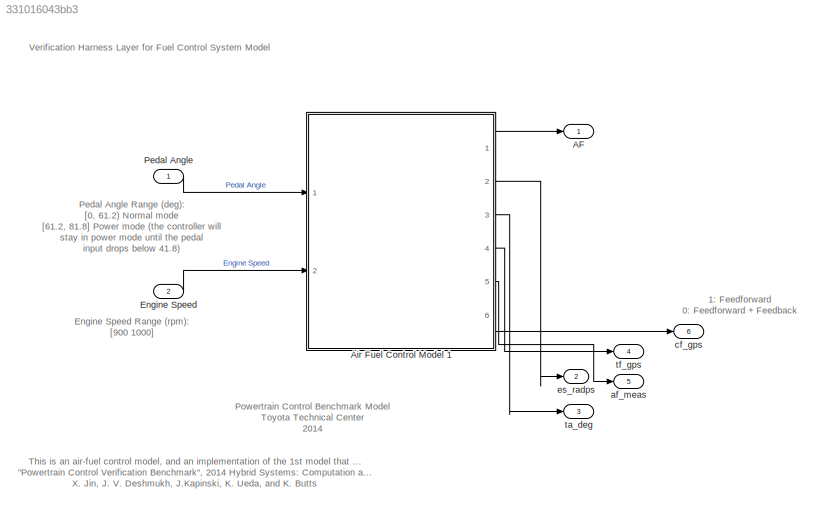
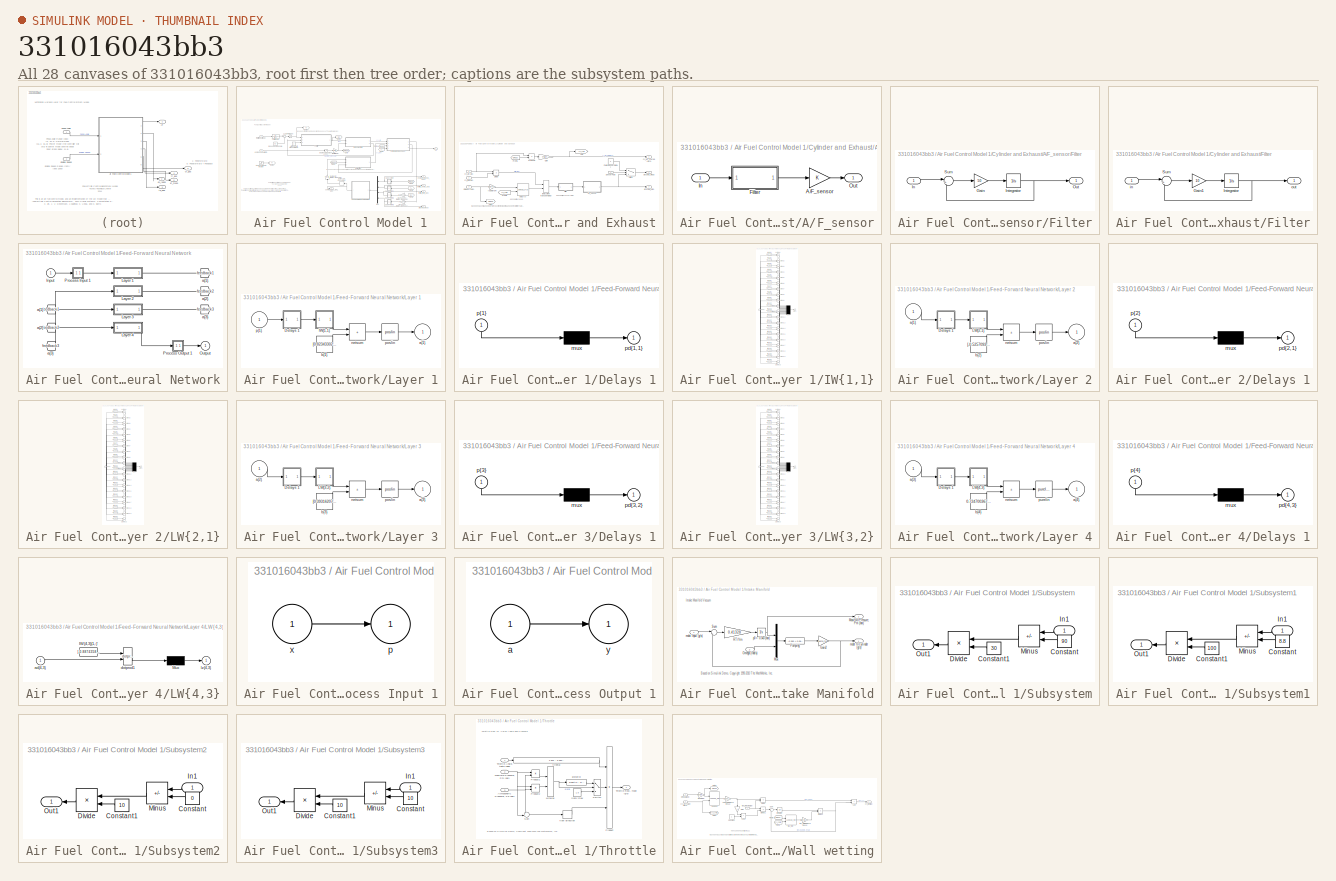
[diagram: thumbnail index - all 28 canvases of the model, root first then tree order]
MODEL slx_331016043bb3
KIND model
CONFIG AbsTol = auto
CONFIG EnableMultiTasking = off
CONFIG FixedStep = auto
CONFIG MaxStep = .01
CONFIG MinStep = auto
CONFIG RelTol = 1e-3
CONFIG SampleTimeConstraint = Unconstrained
CONFIG Solver = ode15s
CONFIG SolverMode = SingleTasking
CONFIG SolverName = ode15s
CONFIG StartTime = 0.0
CONFIG StopTime = T
BLOCK [Outport] AF
  VectorParamsAs1DForOutWhenUnconnected = off
BLOCK [SubSystem] Air Fuel Control Model 1
  Ports = [2, 6]
  Priority = 1
  RequestExecContextInheritance = off
  TreatAsAtomicUnit = on
BLOCK [Gain] Air Fuel Control Model 1/(rpm) to (rad//s)
  Gain = pi/30
BLOCK [Step] Air Fuel Control Model 1/A//F Sensor Fault Injection
  AttributesFormatString = 1: Failure\n0: Normal
  SampleTime = 0
  Time = fault_time
BLOCK [Gain] Air Fuel Control Model 1/A//F sensor tolerance [0.99 1.01]
  Gain = AF_sensor_tol
BLOCK [Outport] Air Fuel Control Model 1/AF
  VectorParamsAs1DForOutWhenUnconnected = off
BLOCK [Constant] Air Fuel Control Model 1/Atmospheric Pressure (bar)
BLOCK [Constant] Air Fuel Control Model 1/Base opening angle
  Value = 8.8
BLOCK [SubSystem] Air Fuel Control Model 1/Cylinder and Exhaust
  Ports = [4, 3]
  RequestExecContextInheritance = off
BLOCK [SubSystem] Air Fuel Control Model 1/Cylinder and Exhaust/A//F_sensor
  Ports = [1, 1]
  RequestExecContextInheritance = off
BLOCK [Gain] Air Fuel Control Model 1/Cylinder and Exhaust/A//F_sensor/A//F_sensor
  OutDataTypeStr = double
BLOCK [SubSystem] Air Fuel Control Model 1/Cylinder and Exhaust/A//F_sensor/Filter
  Ports = [1, 1]
  RequestExecContextInheritance = off
BLOCK [Gain] Air Fuel Control Model 1/Cylinder and Exhaust/A//F_sensor/Filter/Gain
  Gain = 50
BLOCK [Inport] Air Fuel Control Model 1/Cylinder and Exhaust/A//F_sensor/Filter/In
BLOCK [Integrator] Air Fuel Control Model 1/Cylinder and Exhaust/A//F_sensor/Filter/Integrator
  InitialCondition = 14.7
  Ports = [1, 1]
BLOCK [Outport] Air Fuel Control Model 1/Cylinder and Exhaust/A//F_sensor/Filter/Out
  VectorParamsAs1DForOutWhenUnconnected = off
BLOCK [Sum] Air Fuel Control Model 1/Cylinder and Exhaust/A//F_sensor/Filter/Sum
  Inputs = |+-
  Ports = [2, 1]
BLOCK [Inport] Air Fuel Control Model 1/Cylinder and Exhaust/A//F_sensor/In
BLOCK [Outport] Air Fuel Control Model 1/Cylinder and Exhaust/A//F_sensor/Out
  VectorParamsAs1DForOutWhenUnconnected = off
BLOCK [Product] Air Fuel Control Model 1/Cylinder and Exhaust/Divide
  Inputs = */
  Ports = [2, 1]
BLOCK [Constant] Air Fuel Control Model 1/Cylinder and Exhaust/FaultySensorOutput
  Value = -1
BLOCK [SubSystem] Air Fuel Control Model 1/Cylinder and Exhaust/Filter
  Ports = [1, 1]
  RequestExecContextInheritance = off
BLOCK [Gain] Air Fuel Control Model 1/Cylinder and Exhaust/Filter/Gain1
  Gain = 10
BLOCK [Integrator] Air Fuel Control Model 1/Cylinder and Exhaust/Filter/Integrator
  InitialCondition = 14.7
  Ports = [1, 1]
BLOCK [Sum] Air Fuel Control Model 1/Cylinder and Exhaust/Filter/Sum
  Inputs = |+-
  Ports = [2, 1]
BLOCK [Inport] Air Fuel Control Model 1/Cylinder and Exhaust/Filter/in
BLOCK [Outport] Air Fuel Control Model 1/Cylinder and Exhaust/Filter/out
  VectorParamsAs1DForOutWhenUnconnected = off
BLOCK [From] Air Fuel Control Model 1/Cylinder and Exhaust/From1
  GotoTag = Omega
BLOCK [From] Air Fuel Control Model 1/Cylinder and Exhaust/From3
  GotoTag = cyl_chrg
BLOCK [Gain] Air Fuel Control Model 1/Cylinder and Exhaust/Gain
  Gain = 4*pi/4
BLOCK [Goto] Air Fuel Control Model 1/Cylinder and Exhaust/Goto
  GotoTag = cyl_chrg
BLOCK [Goto] Air Fuel Control Model 1/Cylinder and Exhaust/Goto1
  GotoTag = Omega
BLOCK [Inport] Air Fuel Control Model 1/Cylinder and Exhaust/Omega (rad//s)
  Port = 3
BLOCK [Product] Air Fuel Control Model 1/Cylinder and Exhaust/Product1
  Inputs = */
  Ports = [2, 1]
  RndMeth = Zero
BLOCK [Inport] Air Fuel Control Model 1/Cylinder and Exhaust/SensorFault
  Port = 4
BLOCK [Switch] Air Fuel Control Model 1/Cylinder and Exhaust/Switch
  InputSameDT = off
  SaturateOnIntegerOverflow = off
  Threshold = 0.5
BLOCK [Outport] Air Fuel Control Model 1/Cylinder and Exhaust/airbyfue_meas
  VectorParamsAs1DForOutWhenUnconnected = off
BLOCK [Outport] Air Fuel Control Model 1/Cylinder and Exhaust/airbyfuel_mon 
  Port = 3
  VectorParamsAs1DForOutWhenUnconnected = off
BLOCK [Inport] Air Fuel Control Model 1/Cylinder and Exhaust/cyl_air (g//s)
BLOCK [Outport] Air Fuel Control Model 1/Cylinder and Exhaust/cyl_air_charge (g//cyl)
  Port = 2
  VectorParamsAs1DForOutWhenUnconnected = off
BLOCK [Inport] Air Fuel Control Model 1/Cylinder and Exhaust/cyl_fuel (g//s)
  Port = 2
BLOCK [Lookup_n-D] Air Fuel Control Model 1/Cylinder and Exhaust/delay (s)
  BreakpointsForDimension1 = [800,1000,1500,2000,3000]
  BreakpointsForDimension2 = [0.05,0.15,0.2,0.25]
  InputPortMap = u0,u1
  Ports = [2, 1]
  RndMeth = Simplest
  Table = reshape([0.8,0.6,0.4,0.3,0.2,0.4,0.3,0.2,0.2,0.2,0.3,0.25,0.2,0.2,0.2,0.25,0.2,0.2,0.2,0.2],5,4)
  UseLastTableValue = on
BLOCK [VariableTransportDelay] Air Fuel Control Model 1/Cylinder and Exhaust/fuel system transport delay
  InitialOutput = 14.7
  MaximumDelay = 10
  MaximumPoints = 20480
  Ports = [2, 1]
  VariableDelayType = Variable transport delay
BLOCK [Gain] Air Fuel Control Model 1/Cylinder and Exhaust/rad//s to rpm
  Gain = 60/(2*pi)
BLOCK [DataTypeConversion] Air Fuel Control Model 1/Data Type Conversion
  OutDataTypeStr = double
  RndMeth = Floor
  SaturateOnIntegerOverflow = off
BLOCK [Saturate] Air Fuel Control Model 1/Engine Speed [900 1100]
  LowerLimit = 900
  NameLocation = top
  UpperLimit = 1100
BLOCK [SubSystem] Air Fuel Control Model 1/Feed-Forward Neural Network
  Ports = [1, 1]
  RequestExecContextInheritance = off
BLOCK [From] Air Fuel Control Model 1/Feed-Forward Neural Network/ a{1} 
  GotoTag = feedback1
BLOCK [From] Air Fuel Control Model 1/Feed-Forward Neural Network/ a{2} 
  GotoTag = feedback2
BLOCK [From] Air Fuel Control Model 1/Feed-Forward Neural Network/ a{3} 
  GotoTag = feedback3
BLOCK [Inport] Air Fuel Control Model 1/Feed-Forward Neural Network/Input
  PortDimensions = 4
BLOCK [SubSystem] Air Fuel Control Model 1/Feed-Forward Neural Network/Layer 1
  Ports = [1, 1]
  RequestExecContextInheritance = off
BLOCK [SubSystem] Air Fuel Control Model 1/Feed-Forward Neural Network/Layer 1/Delays 1
  Ports = [1, 1]
  RequestExecContextInheritance = off
BLOCK [Mux] Air Fuel Control Model 1/Feed-Forward Neural Network/Layer 1/Delays 1/mux
  Inputs = 1
  Ports = [1, 1]
BLOCK [Outport] Air Fuel Control Model 1/Feed-Forward Neural Network/Layer 1/Delays 1/pd{1,1}
BLOCK [Inport] Air Fuel Control Model 1/Feed-Forward Neural Network/Layer 1/Delays 1/p{1}
  NameLocation = left
  PortDimensions = 4
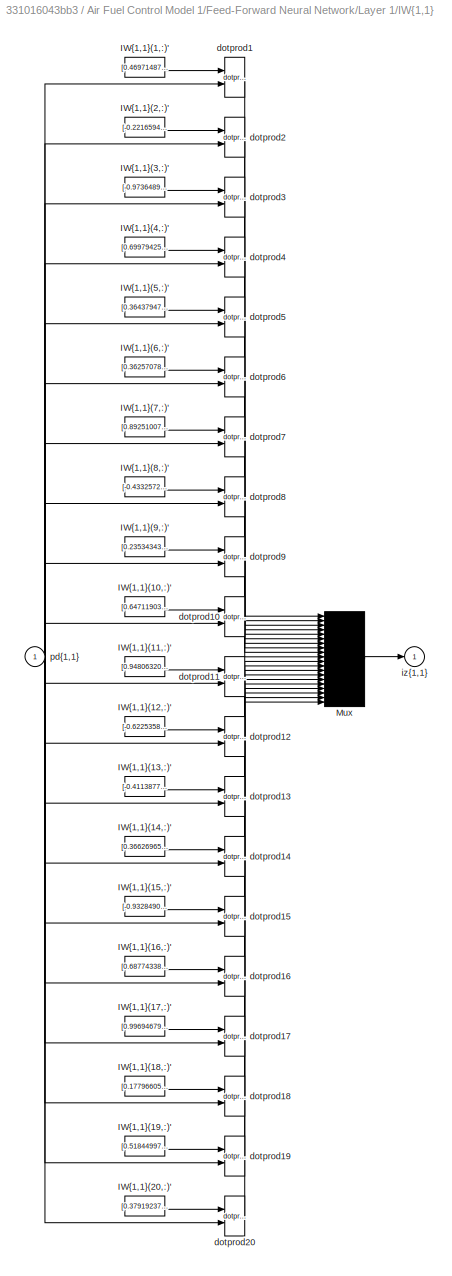
BLOCK [SubSystem] Air Fuel Control Model 1/Feed-Forward Neural Network/Layer 1/IW{1,1}
  Ports = [1, 1]
  RequestExecContextInheritance = off
BLOCK [Constant] Air Fuel Control Model 1/Feed-Forward Neural Network/Layer 1/IW{1,1}/IW{1,1}(1,:)'
  Value = [0.46971487894481300795490597010939382016658782958984375;0.5588812252106354350189576507546007633209228515625;-0.26750330139495892556311673615709878504276275634765625;0.5538737303322356364532197403605096042156219482421875]
BLOCK [Constant] Air Fuel Control Model 1/Feed-Forward Neural Network/Layer 1/IW{1,1}/IW{1,1}(10,:)'
  Value = [0.6471190383921179289927749778144061565399169921875;0.685125521039029461434211043524555861949920654296875;0.44410827722401824413367421584553085267543792724609375;-0.2426448712612165048430057368022971786558628082275390625]
BLOCK [Constant] Air Fuel Control Model 1/Feed-Forward Neural Network/Layer 1/IW{1,1}/IW{1,1}(11,:)'
  Value = [0.94806320526483134347728309876401908695697784423828125;-0.5271139236584805320973146081087179481983184814453125;0.5873978209470409606041130246012471616268157958984375;-0.966654663354358678617472833138890564441680908203125]
BLOCK [Constant] Air Fuel Control Model 1/Feed-Forward Neural Network/Layer 1/IW{1,1}/IW{1,1}(12,:)'
  Value = [-0.6225358084263581393003050834522582590579986572265625;0.0905359539841827098971549503403366543352603912353515625;-0.39638061611956854068949951397371478378772735595703125;-0.80464504816533188868987735986593179404735565185546875]
BLOCK [Constant] Air Fuel Control Model 1/Feed-Forward Neural Network/Layer 1/IW{1,1}/IW{1,1}(13,:)'
  Value = [-0.4113877985828928718348151960526593029499053955078125;0.3562076854187825603048622724600136280059814453125;0.871526360654746756750910208211280405521392822265625;-0.181530928525161616704508560360409319400787353515625]
BLOCK [Constant] Air Fuel Control Model 1/Feed-Forward Neural Network/Layer 1/IW{1,1}/IW{1,1}(14,:)'
  Value = [0.3662696591091283426777636123006232082843780517578125;0.679871501026944269341356630320660769939422607421875;-0.471150814791086336441594539792276918888092041015625;-0.6419463040298138967187924208701588213443756103515625]
BLOCK [Constant] Air Fuel Control Model 1/Feed-Forward Neural Network/Layer 1/IW{1,1}/IW{1,1}(15,:)'
  Value = [-0.93284905338345203151817486286745406687259674072265625;0.330738233236527623404299447429366409778594970703125;0.93741208499063055636923991187359206378459930419921875;0.340888320772168740280250176510890014469623565673828125]
BLOCK [Constant] Air Fuel Control Model 1/Feed-Forward Neural Network/Layer 1/IW{1,1}/IW{1,1}(16,:)'
  Value = [0.6877433826053849230675041326321661472320556640625;-0.1575611346774612453458530580974183976650238037109375;0.97865719827408526043655001558363437652587890625;0.475567205851662955229386398059432394802570343017578125]
BLOCK [Constant] Air Fuel Control Model 1/Feed-Forward Neural Network/Layer 1/IW{1,1}/IW{1,1}(17,:)'
  Value = [0.99694679133199970433309999862103722989559173583984375;0.55040327579322478879220170711050741374492645263671875;-0.9546618958495505236072631305432878434658050537109375;0.7278243893231206573801728154649026691913604736328125]
BLOCK [Constant] Air Fuel Control Model 1/Feed-Forward Neural Network/Layer 1/IW{1,1}/IW{1,1}(18,:)'
  Value = [0.1779660500445132964575378764493507333099842071533203125;-0.95178701658411013486471574651659466326236724853515625;0.10149573409160246584281850346087594516575336456298828125;0.801728904631232808242202736437320709228515625]
BLOCK [Constant] Air Fuel Control Model 1/Feed-Forward Neural Network/Layer 1/IW{1,1}/IW{1,1}(19,:)'
  Value = [0.5184499723671673887537281188997440040111541748046875;-0.4173989685974082153308017950621433556079864501953125;0.130829776648777151848435096326284110546112060546875;0.2859748242315693911308471797383390367031097412109375]
BLOCK [Constant] Air Fuel Control Model 1/Feed-Forward Neural Network/Layer 1/IW{1,1}/IW{1,1}(2,:)'
  Value = [-0.2216594167842542706381436801166273653507232666015625;-0.90809320623807909811375793651677668094635009765625;-0.587545634297164998116613787715323269367218017578125;0.73928643226658596887546082143671810626983642578125]
BLOCK [Constant] Air Fuel Control Model 1/Feed-Forward Neural Network/Layer 1/IW{1,1}/IW{1,1}(20,:)'
  Value = [0.3791923782396964259788774143089540302753448486328125;-0.6093195289809247849888151904451660811901092529296875;0.0824264124403697451271000318229198455810546875;-0.4449248933831999597288131553796119987964630126953125]
BLOCK [Constant] Air Fuel Control Model 1/Feed-Forward Neural Network/Layer 1/IW{1,1}/IW{1,1}(3,:)'
  Value = [-0.9736489987848695459859982292982749640941619873046875;-0.72823769101063351438796189540880732238292694091796875;0.88122543246099238611890314132324419915676116943359375;0.665208743208840491689670670893974602222442626953125]
BLOCK [Constant] Air Fuel Control Model 1/Feed-Forward Neural Network/Layer 1/IW{1,1}/IW{1,1}(4,:)'
  Value = [0.69979425594607558291926352467271499335765838623046875;-0.87488689815494125046058115913183428347110748291015625;0.87839772897309253973929799030884169042110443115234375;0.1037108376174734891694839689080254174768924713134765625]
BLOCK [Constant] Air Fuel Control Model 1/Feed-Forward Neural Network/Layer 1/IW{1,1}/IW{1,1}(5,:)'
  Value = [0.364379471021596457180891093230457045137882232666015625;0.550203971003117242588587032514624297618865966796875;0.54402567695067116648743876794469542801380157470703125;0.3836478862638319498046257649548351764678955078125]
BLOCK [Constant] Air Fuel Control Model 1/Feed-Forward Neural Network/Layer 1/IW{1,1}/IW{1,1}(6,:)'
  Value = [0.362570781520201668168823516680276952683925628662109375;-0.95586851781023229879252767204889096319675445556640625;0.63877157911100390652592295737122185528278350830078125;-0.647908134163907245550717561854980885982513427734375]
BLOCK [Constant] Air Fuel Control Model 1/Feed-Forward Neural Network/Layer 1/IW{1,1}/IW{1,1}(7,:)'
  Value = [0.8925100797553089382319058131542988121509552001953125;0.95489343544227567317506100152968429028987884521484375;0.32158400357863670127045452318270690739154815673828125;0.8221626936217802938955401259590871632099151611328125]
BLOCK [Constant] Air Fuel Control Model 1/Feed-Forward Neural Network/Layer 1/IW{1,1}/IW{1,1}(8,:)'
  Value = [-0.433257253770228611955417363788001239299774169921875;0.292535267362851403305512576480396091938018798828125;0.7019264879989439709362386565771885216236114501953125;-0.3172605923221476498241599983884952962398529052734375]
BLOCK [Constant] Air Fuel Control Model 1/Feed-Forward Neural Network/Layer 1/IW{1,1}/IW{1,1}(9,:)'
  Value = [0.23534343297169424413795013606431894004344940185546875;0.94498404312847750219361842027865350246429443359375;0.1532223055043882842252145337624824605882167816162109375;-0.64445913035221857878553919363184832036495208740234375]
BLOCK [Mux] Air Fuel Control Model 1/Feed-Forward Neural Network/Layer 1/IW{1,1}/Mux
  Inputs = 20
  Ports = [20, 1]
BLOCK [Reference] Air Fuel Control Model 1/Feed-Forward Neural Network/Layer 1/IW{1,1}/dotprod1  REF=neural/Weight Functions/dotprod
  Ports = [2, 1]
  SourceBlock = neural/Weight Functions/dotprod
  SourceProductBaseCode = NN
  SourceType = DOTPROD
BLOCK [Reference] Air Fuel Control Model 1/Feed-Forward Neural Network/Layer 1/IW{1,1}/dotprod10  REF=neural/Weight Functions/dotprod
  Ports = [2, 1]
  SourceBlock = neural/Weight Functions/dotprod
  SourceProductBaseCode = NN
  SourceType = DOTPROD
BLOCK [Reference] Air Fuel Control Model 1/Feed-Forward Neural Network/Layer 1/IW{1,1}/dotprod11  REF=neural/Weight Functions/dotprod
  Ports = [2, 1]
  SourceBlock = neural/Weight Functions/dotprod
  SourceProductBaseCode = NN
  SourceType = DOTPROD
BLOCK [Reference] Air Fuel Control Model 1/Feed-Forward Neural Network/Layer 1/IW{1,1}/dotprod12  REF=neural/Weight Functions/dotprod
  Ports = [2, 1]
  SourceBlock = neural/Weight Functions/dotprod
  SourceProductBaseCode = NN
  SourceType = DOTPROD
BLOCK [Reference] Air Fuel Control Model 1/Feed-Forward Neural Network/Layer 1/IW{1,1}/dotprod13  REF=neural/Weight Functions/dotprod
  Ports = [2, 1]
  SourceBlock = neural/Weight Functions/dotprod
  SourceProductBaseCode = NN
  SourceType = DOTPROD
BLOCK [Reference] Air Fuel Control Model 1/Feed-Forward Neural Network/Layer 1/IW{1,1}/dotprod14  REF=neural/Weight Functions/dotprod
  Ports = [2, 1]
  SourceBlock = neural/Weight Functions/dotprod
  SourceProductBaseCode = NN
  SourceType = DOTPROD
BLOCK [Reference] Air Fuel Control Model 1/Feed-Forward Neural Network/Layer 1/IW{1,1}/dotprod15  REF=neural/Weight Functions/dotprod
  Ports = [2, 1]
  SourceBlock = neural/Weight Functions/dotprod
  SourceProductBaseCode = NN
  SourceType = DOTPROD
BLOCK [Reference] Air Fuel Control Model 1/Feed-Forward Neural Network/Layer 1/IW{1,1}/dotprod16  REF=neural/Weight Functions/dotprod
  Ports = [2, 1]
  SourceBlock = neural/Weight Functions/dotprod
  SourceProductBaseCode = NN
  SourceType = DOTPROD
BLOCK [Reference] Air Fuel Control Model 1/Feed-Forward Neural Network/Layer 1/IW{1,1}/dotprod17  REF=neural/Weight Functions/dotprod
  Ports = [2, 1]
  SourceBlock = neural/Weight Functions/dotprod
  SourceProductBaseCode = NN
  SourceType = DOTPROD
BLOCK [Reference] Air Fuel Control Model 1/Feed-Forward Neural Network/Layer 1/IW{1,1}/dotprod18  REF=neural/Weight Functions/dotprod
  Ports = [2, 1]
  SourceBlock = neural/Weight Functions/dotprod
  SourceProductBaseCode = NN
  SourceType = DOTPROD
BLOCK [Reference] Air Fuel Control Model 1/Feed-Forward Neural Network/Layer 1/IW{1,1}/dotprod19  REF=neural/Weight Functions/dotprod
  Ports = [2, 1]
  SourceBlock = neural/Weight Functions/dotprod
  SourceProductBaseCode = NN
  SourceType = DOTPROD
BLOCK [Reference] Air Fuel Control Model 1/Feed-Forward Neural Network/Layer 1/IW{1,1}/dotprod2  REF=neural/Weight Functions/dotprod
  Ports = [2, 1]
  SourceBlock = neural/Weight Functions/dotprod
  SourceProductBaseCode = NN
  SourceType = DOTPROD
BLOCK [Reference] Air Fuel Control Model 1/Feed-Forward Neural Network/Layer 1/IW{1,1}/dotprod20  REF=neural/Weight Functions/dotprod
  Ports = [2, 1]
  SourceBlock = neural/Weight Functions/dotprod
  SourceProductBaseCode = NN
  SourceType = DOTPROD
BLOCK [Reference] Air Fuel Control Model 1/Feed-Forward Neural Network/Layer 1/IW{1,1}/dotprod3  REF=neural/Weight Functions/dotprod
  Ports = [2, 1]
  SourceBlock = neural/Weight Functions/dotprod
  SourceProductBaseCode = NN
  SourceType = DOTPROD
BLOCK [Reference] Air Fuel Control Model 1/Feed-Forward Neural Network/Layer 1/IW{1,1}/dotprod4  REF=neural/Weight Functions/dotprod
  Ports = [2, 1]
  SourceBlock = neural/Weight Functions/dotprod
  SourceProductBaseCode = NN
  SourceType = DOTPROD
BLOCK [Reference] Air Fuel Control Model 1/Feed-Forward Neural Network/Layer 1/IW{1,1}/dotprod5  REF=neural/Weight Functions/dotprod
  Ports = [2, 1]
  SourceBlock = neural/Weight Functions/dotprod
  SourceProductBaseCode = NN
  SourceType = DOTPROD
BLOCK [Reference] Air Fuel Control Model 1/Feed-Forward Neural Network/Layer 1/IW{1,1}/dotprod6  REF=neural/Weight Functions/dotprod
  Ports = [2, 1]
  SourceBlock = neural/Weight Functions/dotprod
  SourceProductBaseCode = NN
  SourceType = DOTPROD
BLOCK [Reference] Air Fuel Control Model 1/Feed-Forward Neural Network/Layer 1/IW{1,1}/dotprod7  REF=neural/Weight Functions/dotprod
  Ports = [2, 1]
  SourceBlock = neural/Weight Functions/dotprod
  SourceProductBaseCode = NN
  SourceType = DOTPROD
BLOCK [Reference] Air Fuel Control Model 1/Feed-Forward Neural Network/Layer 1/IW{1,1}/dotprod8  REF=neural/Weight Functions/dotprod
  Ports = [2, 1]
  SourceBlock = neural/Weight Functions/dotprod
  SourceProductBaseCode = NN
  SourceType = DOTPROD
BLOCK [Reference] Air Fuel Control Model 1/Feed-Forward Neural Network/Layer 1/IW{1,1}/dotprod9  REF=neural/Weight Functions/dotprod
  Ports = [2, 1]
  SourceBlock = neural/Weight Functions/dotprod
  SourceProductBaseCode = NN
  SourceType = DOTPROD
BLOCK [Outport] Air Fuel Control Model 1/Feed-Forward Neural Network/Layer 1/IW{1,1}/iz{1,1}
BLOCK [Inport] Air Fuel Control Model 1/Feed-Forward Neural Network/Layer 1/IW{1,1}/pd{1,1}
  PortDimensions = 4
BLOCK [Outport] Air Fuel Control Model 1/Feed-Forward Neural Network/Layer 1/a{1}
  InitialOutput = [0;0;0;0;0;0;0;0;0;0;0;0;0;0;0;0;0;0;0;0]
BLOCK [Constant] Air Fuel Control Model 1/Feed-Forward Neural Network/Layer 1/b{1}
  Value = [0.8234330260432674020165677575278095901012420654296875;-0.8376473146531016045202022723970003426074981689453125;-0.72161732871167127978395683385315351188182830810546875;-0.207619504791306253022042938027880154550075531005859375;-0.339669503140852035993901836263830773532390594482421875;0.51891096138944392546221706652431748807430267333984375;0.62476501523118022074498867368674837052822113037109375;-0....<+724ch>
BLOCK [Sum] Air Fuel Control Model 1/Feed-Forward Neural Network/Layer 1/netsum
  IconShape = rectangular
  InputSameDT = on
  Inputs = 2
  OutDataTypeStr = Inherit: Same as first input
  Ports = [2, 1]
  SaturateOnIntegerOverflow = on
BLOCK [Reference] Air Fuel Control Model 1/Feed-Forward Neural Network/Layer 1/poslin  REF=neural/Transfer Functions/poslin
  Ports = [1, 1]
  SourceBlock = neural/Transfer Functions/poslin
  SourceProductBaseCode = NN
  SourceType = POSLIN
BLOCK [Inport] Air Fuel Control Model 1/Feed-Forward Neural Network/Layer 1/p{1}
  PortDimensions = 4
BLOCK [SubSystem] Air Fuel Control Model 1/Feed-Forward Neural Network/Layer 2
  Ports = [1, 1]
  RequestExecContextInheritance = off
BLOCK [SubSystem] Air Fuel Control Model 1/Feed-Forward Neural Network/Layer 2/Delays 1
  Ports = [1, 1]
  RequestExecContextInheritance = off
BLOCK [Mux] Air Fuel Control Model 1/Feed-Forward Neural Network/Layer 2/Delays 1/mux
  Inputs = 1
  Ports = [1, 1]
BLOCK [Outport] Air Fuel Control Model 1/Feed-Forward Neural Network/Layer 2/Delays 1/pd{2,1}
BLOCK [Inport] Air Fuel Control Model 1/Feed-Forward Neural Network/Layer 2/Delays 1/p{2}
  NameLocation = left
  PortDimensions = 20
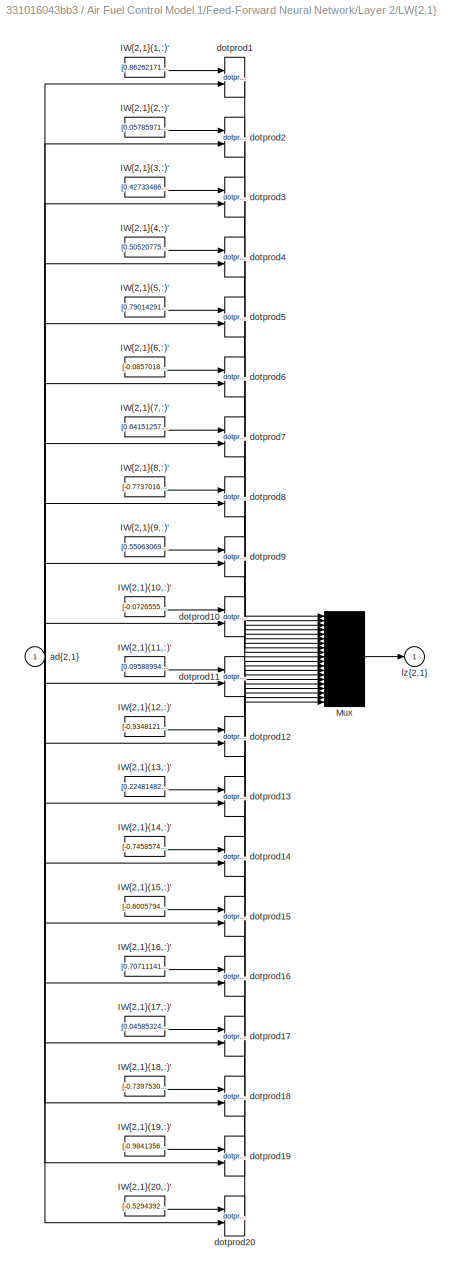
BLOCK [SubSystem] Air Fuel Control Model 1/Feed-Forward Neural Network/Layer 2/LW{2,1}
  Ports = [1, 1]
  RequestExecContextInheritance = off
BLOCK [Constant] Air Fuel Control Model 1/Feed-Forward Neural Network/Layer 2/LW{2,1}/IW{2,1}(1,:)'
  Value = [0.86262171212581317814027670465293340384960174560546875;-0.0809713275149992472989879388478584587574005126953125;-0.06795489901903113694192626326184836216270923614501953125;0.82556021153306502480262452081660740077495574951171875;-0.413708017924451609825808873210917226970195770263671875;0.05766955933912569498556166536218370310962200164794921875;0.1685884921712796913340071114362217485904693603515625...<+729ch>
BLOCK [Constant] Air Fuel Control Model 1/Feed-Forward Neural Network/Layer 2/LW{2,1}/IW{2,1}(10,:)'
  Value = [-0.072655533469739241869689294617273844778537750244140625;-0.0338506983237694125676853218465112149715423583984375;0.794086549436289867998084446298889815807342529296875;-0.89338426426355888043673303400282748043537139892578125;0.5841371360598441864198093753657303750514984130859375;0.71322874586069973101842833784758113324642181396484375;0.75489573321138891959236616457928903400897979736328125;-0.9685...<+708ch>
BLOCK [Constant] Air Fuel Control Model 1/Feed-Forward Neural Network/Layer 2/LW{2,1}/IW{2,1}(11,:)'
  Value = [0.09588994114618930308946431750882766209542751312255859375;0.1210127631147310811599027147167362272739410400390625;0.30064097778189580179031281659263186156749725341796875;0.65674221767097373803068194320076145231723785400390625;0.7429021297328883832733481540344655513763427734375;0.288458394032541531881719265584251843392848968505859375;0.60538121717023873902263630952802486717700958251953125;-0.48023...<+739ch>
BLOCK [Constant] Air Fuel Control Model 1/Feed-Forward Neural Network/Layer 2/LW{2,1}/IW{2,1}(12,:)'
  Value = [-0.9348121361945544993687917667557485401630401611328125;0.3003128126727909741333633064641617238521575927734375;0.1157846272292953615501431841039448045194149017333984375;-0.216305507537213170810019846612703986465930938720703125;0.774423564770622352426698853378184139728546142578125;0.371545045483997693480660018394701182842254638671875;0.09912754376340364437236729600044782273471355438232421875;-0.53...<+730ch>
BLOCK [Constant] Air Fuel Control Model 1/Feed-Forward Neural Network/Layer 2/LW{2,1}/IW{2,1}(13,:)'
  Value = [0.2248148296888425601292027522504213266074657440185546875;-0.2871577471879491749717772108851931989192962646484375;-0.976416083161352421626588693470694124698638916015625;0.197434855338593118201373499687178991734981536865234375;0.9933077412102504499813449001521803438663482666015625;-0.01565552347745839678605506151143345050513744354248046875;0.91638657400617962167643781867809593677520751953125;-0.91...<+723ch>
BLOCK [Constant] Air Fuel Control Model 1/Feed-Forward Neural Network/Layer 2/LW{2,1}/IW{2,1}(14,:)'
  Value = [-0.745857412912687589567894974607042968273162841796875;0.82463747708005730174818381783552467823028564453125;0.362047568190309476676702615804970264434814453125;-0.2186617829231780607557311668642796576023101806640625;-0.9315055463232406740559099489473737776279449462890625;0.95969200536784082800068063079379498958587646484375;-0.33016336042130678407602317747659981250762939453125;-0.562336873331841902...<+690ch>
BLOCK [Constant] Air Fuel Control Model 1/Feed-Forward Neural Network/Layer 2/LW{2,1}/IW{2,1}(15,:)'
  Value = [-0.600579432867761386916072297026403248310089111328125;0.7746968685312101143836116534657776355743408203125;-0.5537725014226222430835377963376231491565704345703125;-0.9941776765755656608547496944083832204341888427734375;0.9783384886135941815865635362570174038410186767578125;0.18352596570449630775101468316279351711273193359375;0.500952434621920072999046169570647180080413818359375;0.7748970670756569...<+693ch>
BLOCK [Constant] Air Fuel Control Model 1/Feed-Forward Neural Network/Layer 2/LW{2,1}/IW{2,1}(16,:)'
  Value = [0.70711141005829836192475568168447352945804595947265625;-0.40093033966374225229856165242381393909454345703125;0.1890765774960777856339433355969958938658237457275390625;-0.72159223497136093516957089377683587372303009033203125;0.402233977014460897247971615797723643481731414794921875;-0.2325892415416627445612363089821883477270603179931640625;0.72247035748294974322192274485132656991481781005859375;-0...<+739ch>
BLOCK [Constant] Air Fuel Control Model 1/Feed-Forward Neural Network/Layer 2/LW{2,1}/IW{2,1}(17,:)'
  Value = [0.045853247632425320201576823819777928292751312255859375;0.822039872673234750521942260093055665493011474609375;0.3491918241402653944049916390213184058666229248046875;0.28125930251206010535014456763747148215770721435546875;0.7510506003149115539230251670232973992824554443359375;-0.2219816772802330751002131137283868156373500823974609375;-0.4663309081113664600337642696104012429714202880859375;-0.4874...<+709ch>
BLOCK [Constant] Air Fuel Control Model 1/Feed-Forward Neural Network/Layer 2/LW{2,1}/IW{2,1}(18,:)'
  Value = [-0.73975305768628285552068746255827136337757110595703125;-0.6661290025351693788735474299755878746509552001953125;-0.005735859632089113091524268384091556072235107421875;-0.40131943488533716735133793918066658079624176025390625;0.5333884767507954816068149739294312894344329833984375;-0.421011292630689204496974298308487050235271453857421875;0.00920152079194616438762022170294585521332919597625732421875...<+716ch>
BLOCK [Constant] Air Fuel Control Model 1/Feed-Forward Neural Network/Layer 2/LW{2,1}/IW{2,1}(19,:)'
  Value = [-0.98413565633714572555845734314061701297760009765625;-0.1603481999516318534659831129829399287700653076171875;0.55947126581339290396499563939869403839111328125;0.292677442169610113609223844832740724086761474609375;-0.5152893260585293955244878816301934421062469482421875;-0.541974036153570093432563226087950170040130615234375;-0.5467871571099200966870057527557946741580963134765625;0.9230383622808280...<+693ch>
BLOCK [Constant] Air Fuel Control Model 1/Feed-Forward Neural Network/Layer 2/LW{2,1}/IW{2,1}(2,:)'
  Value = [0.057859716091335645915538776762332418002188205718994140625;-0.535046908370210072547479285276494920253753662109375;0.81340179301269854850175988758564926683902740478515625;-0.32781710547382314491215993257355876266956329345703125;0.82077955243652223060735195758752524852752685546875;0.62329794567648411085514226215309463441371917724609375;0.94245559398747336121715534318354912102222442626953125;-0.998...<+715ch>
BLOCK [Constant] Air Fuel Control Model 1/Feed-Forward Neural Network/Layer 2/LW{2,1}/IW{2,1}(20,:)'
  Value = [-0.52943927636480425658049853154807351529598236083984375;-0.2966062710950774228280124589218758046627044677734375;0.1540089579885660364677590905557735823094844818115234375;0.54904463437349371179863055658643133938312530517578125;-0.69117023594639837025255246771848760545253753662109375;0.8436224989711955668525433793547563254833221435546875;0.94175657229892184574282509856857359409332275390625;-0.7828...<+713ch>
BLOCK [Constant] Air Fuel Control Model 1/Feed-Forward Neural Network/Layer 2/LW{2,1}/IW{2,1}(3,:)'
  Value = [0.4273348626227451152459479999379254877567291259765625;-0.4265169963215935666767109069041907787322998046875;0.03902005095007421431319016846828162670135498046875;-0.327112436974852816007341971271671354770660400390625;0.6644345810199185908828667379566468298435211181640625;-0.3167668248132777808478977021877653896808624267578125;-0.528063217767079873254942867788486182689666748046875;0.767623790782838...<+696ch>
BLOCK [Constant] Air Fuel Control Model 1/Feed-Forward Neural Network/Layer 2/LW{2,1}/IW{2,1}(4,:)'
  Value = [0.505207754635216499394800848676823079586029052734375;0.8497128708158800947103372891433537006378173828125;0.271629029297347723836963950816425494849681854248046875;-0.73459157245590611662322544361813925206661224365234375;-0.48423857896769983977236506689223460853099822998046875;0.078524690389959406200404146147775463759899139404296875;0.78485240633557717959689625786268152296543121337890625;0.3807758...<+712ch>
BLOCK [Constant] Air Fuel Control Model 1/Feed-Forward Neural Network/Layer 2/LW{2,1}/IW{2,1}(5,:)'
  Value = [0.79014291583571283350551084367907606065273284912109375;0.52314342705881156092573291971348226070404052734375;-0.0132186133404262051715960524234105832874774932861328125;-0.377377198694974158588166801564511843025684356689453125;-0.145116095344623607932277309373603202402591705322265625;0.4306253992997668422759716122527606785297393798828125;0.49163017411709153403620575772947631776332855224609375;0.99...<+720ch>
BLOCK [Constant] Air Fuel Control Model 1/Feed-Forward Neural Network/Layer 2/LW{2,1}/IW{2,1}(6,:)'
  Value = [-0.08570187846410169674182810695128864608705043792724609375;-0.88606863637394273069958217092789709568023681640625;-0.231484400753580121801178393070586025714874267578125;0.6980236328692532854489627425209619104862213134765625;0.9676573172381079945836290789884515106678009033203125;0.397676548537972518460037463228218257427215576171875;0.2661679260138327673956837315927259624004364013671875;-0.32827401...<+721ch>
BLOCK [Constant] Air Fuel Control Model 1/Feed-Forward Neural Network/Layer 2/LW{2,1}/IW{2,1}(7,:)'
  Value = [0.6415125798306953175398348321323283016681671142578125;0.496846019945244687932017768616788089275360107421875;0.488886751761993754161750302955624647438526153564453125;0.19261231355371111195751154809840954840183258056640625;0.2432412159042161847732899104812531732022762298583984375;0.436191656152921769518115979735739529132843017578125;0.357750407935541303583448780045728199183940887451171875;-0.54286...<+726ch>
BLOCK [Constant] Air Fuel Control Model 1/Feed-Forward Neural Network/Layer 2/LW{2,1}/IW{2,1}(8,:)'
  Value = [-0.77370163445104556121378891475615091621875762939453125;-0.0834383190815211062130174468620680272579193115234375;0.224224232068447604238059511772007681429386138916015625;-0.439715299963036654329329167012474499642848968505859375;0.51177203790934922000843698697281070053577423095703125;-0.63060246934666042140094077694811858236789703369140625;-0.52438852926069012827525739339762367308139801025390625;0...<+727ch>
BLOCK [Constant] Air Fuel Control Model 1/Feed-Forward Neural Network/Layer 2/LW{2,1}/IW{2,1}(9,:)'
  Value = [0.5506306982440489772301361881545744836330413818359375;-0.329598352781673487044145076652057468891143798828125;0.12192627924002952255477794096805155277252197265625;-0.9560435413180481400985399886849336326122283935546875;-0.25663924693816841937632489134557545185089111328125;-0.2160278097416601372771083333645947277545928955078125;-0.7260659906528055262953103010659106075763702392578125;0.791016045185...<+694ch>
BLOCK [Mux] Air Fuel Control Model 1/Feed-Forward Neural Network/Layer 2/LW{2,1}/Mux
  Inputs = 20
  Ports = [20, 1]
BLOCK [Inport] Air Fuel Control Model 1/Feed-Forward Neural Network/Layer 2/LW{2,1}/ad{2,1}
  PortDimensions = 20
BLOCK [Reference] Air Fuel Control Model 1/Feed-Forward Neural Network/Layer 2/LW{2,1}/dotprod1  REF=neural/Weight Functions/dotprod
  Ports = [2, 1]
  SourceBlock = neural/Weight Functions/dotprod
  SourceProductBaseCode = NN
  SourceType = DOTPROD
BLOCK [Reference] Air Fuel Control Model 1/Feed-Forward Neural Network/Layer 2/LW{2,1}/dotprod10  REF=neural/Weight Functions/dotprod
  Ports = [2, 1]
  SourceBlock = neural/Weight Functions/dotprod
  SourceProductBaseCode = NN
  SourceType = DOTPROD
BLOCK [Reference] Air Fuel Control Model 1/Feed-Forward Neural Network/Layer 2/LW{2,1}/dotprod11  REF=neural/Weight Functions/dotprod
  Ports = [2, 1]
  SourceBlock = neural/Weight Functions/dotprod
  SourceProductBaseCode = NN
  SourceType = DOTPROD
BLOCK [Reference] Air Fuel Control Model 1/Feed-Forward Neural Network/Layer 2/LW{2,1}/dotprod12  REF=neural/Weight Functions/dotprod
  Ports = [2, 1]
  SourceBlock = neural/Weight Functions/dotprod
  SourceProductBaseCode = NN
  SourceType = DOTPROD
BLOCK [Reference] Air Fuel Control Model 1/Feed-Forward Neural Network/Layer 2/LW{2,1}/dotprod13  REF=neural/Weight Functions/dotprod
  Ports = [2, 1]
  SourceBlock = neural/Weight Functions/dotprod
  SourceProductBaseCode = NN
  SourceType = DOTPROD
BLOCK [Reference] Air Fuel Control Model 1/Feed-Forward Neural Network/Layer 2/LW{2,1}/dotprod14  REF=neural/Weight Functions/dotprod
  Ports = [2, 1]
  SourceBlock = neural/Weight Functions/dotprod
  SourceProductBaseCode = NN
  SourceType = DOTPROD
BLOCK [Reference] Air Fuel Control Model 1/Feed-Forward Neural Network/Layer 2/LW{2,1}/dotprod15  REF=neural/Weight Functions/dotprod
  Ports = [2, 1]
  SourceBlock = neural/Weight Functions/dotprod
  SourceProductBaseCode = NN
  SourceType = DOTPROD
BLOCK [Reference] Air Fuel Control Model 1/Feed-Forward Neural Network/Layer 2/LW{2,1}/dotprod16  REF=neural/Weight Functions/dotprod
  Ports = [2, 1]
  SourceBlock = neural/Weight Functions/dotprod
  SourceProductBaseCode = NN
  SourceType = DOTPROD
BLOCK [Reference] Air Fuel Control Model 1/Feed-Forward Neural Network/Layer 2/LW{2,1}/dotprod17  REF=neural/Weight Functions/dotprod
  Ports = [2, 1]
  SourceBlock = neural/Weight Functions/dotprod
  SourceProductBaseCode = NN
  SourceType = DOTPROD
BLOCK [Reference] Air Fuel Control Model 1/Feed-Forward Neural Network/Layer 2/LW{2,1}/dotprod18  REF=neural/Weight Functions/dotprod
  Ports = [2, 1]
  SourceBlock = neural/Weight Functions/dotprod
  SourceProductBaseCode = NN
  SourceType = DOTPROD
BLOCK [Reference] Air Fuel Control Model 1/Feed-Forward Neural Network/Layer 2/LW{2,1}/dotprod19  REF=neural/Weight Functions/dotprod
  Ports = [2, 1]
  SourceBlock = neural/Weight Functions/dotprod
  SourceProductBaseCode = NN
  SourceType = DOTPROD
BLOCK [Reference] Air Fuel Control Model 1/Feed-Forward Neural Network/Layer 2/LW{2,1}/dotprod2  REF=neural/Weight Functions/dotprod
  Ports = [2, 1]
  SourceBlock = neural/Weight Functions/dotprod
  SourceProductBaseCode = NN
  SourceType = DOTPROD
BLOCK [Reference] Air Fuel Control Model 1/Feed-Forward Neural Network/Layer 2/LW{2,1}/dotprod20  REF=neural/Weight Functions/dotprod
  Ports = [2, 1]
  SourceBlock = neural/Weight Functions/dotprod
  SourceProductBaseCode = NN
  SourceType = DOTPROD
BLOCK [Reference] Air Fuel Control Model 1/Feed-Forward Neural Network/Layer 2/LW{2,1}/dotprod3  REF=neural/Weight Functions/dotprod
  Ports = [2, 1]
  SourceBlock = neural/Weight Functions/dotprod
  SourceProductBaseCode = NN
  SourceType = DOTPROD
BLOCK [Reference] Air Fuel Control Model 1/Feed-Forward Neural Network/Layer 2/LW{2,1}/dotprod4  REF=neural/Weight Functions/dotprod
  Ports = [2, 1]
  SourceBlock = neural/Weight Functions/dotprod
  SourceProductBaseCode = NN
  SourceType = DOTPROD
BLOCK [Reference] Air Fuel Control Model 1/Feed-Forward Neural Network/Layer 2/LW{2,1}/dotprod5  REF=neural/Weight Functions/dotprod
  Ports = [2, 1]
  SourceBlock = neural/Weight Functions/dotprod
  SourceProductBaseCode = NN
  SourceType = DOTPROD
BLOCK [Reference] Air Fuel Control Model 1/Feed-Forward Neural Network/Layer 2/LW{2,1}/dotprod6  REF=neural/Weight Functions/dotprod
  Ports = [2, 1]
  SourceBlock = neural/Weight Functions/dotprod
  SourceProductBaseCode = NN
  SourceType = DOTPROD
BLOCK [Reference] Air Fuel Control Model 1/Feed-Forward Neural Network/Layer 2/LW{2,1}/dotprod7  REF=neural/Weight Functions/dotprod
  Ports = [2, 1]
  SourceBlock = neural/Weight Functions/dotprod
  SourceProductBaseCode = NN
  SourceType = DOTPROD
BLOCK [Reference] Air Fuel Control Model 1/Feed-Forward Neural Network/Layer 2/LW{2,1}/dotprod8  REF=neural/Weight Functions/dotprod
  Ports = [2, 1]
  SourceBlock = neural/Weight Functions/dotprod
  SourceProductBaseCode = NN
  SourceType = DOTPROD
BLOCK [Reference] Air Fuel Control Model 1/Feed-Forward Neural Network/Layer 2/LW{2,1}/dotprod9  REF=neural/Weight Functions/dotprod
  Ports = [2, 1]
  SourceBlock = neural/Weight Functions/dotprod
  SourceProductBaseCode = NN
  SourceType = DOTPROD
BLOCK [Outport] Air Fuel Control Model 1/Feed-Forward Neural Network/Layer 2/LW{2,1}/lz{2,1}
BLOCK [Inport] Air Fuel Control Model 1/Feed-Forward Neural Network/Layer 2/a{1} 
  PortDimensions = 20
BLOCK [Outport] Air Fuel Control Model 1/Feed-Forward Neural Network/Layer 2/a{2}
  InitialOutput = [0;0;0;0;0;0;0;0;0;0;0;0;0;0;0;0;0;0;0;0]
BLOCK [Constant] Air Fuel Control Model 1/Feed-Forward Neural Network/Layer 2/b{2}
  Value = [-0.5257093305355036161330417598946951329708099365234375;0.367581053683027791922910409994074143469333648681640625;0.72706716137249305376144548063166439533233642578125;-0.63790112298285295278077455805032514035701751708984375;-0.0246624200968587094229267364653424010612070560455322265625;0.69250988303257166034399006093735806643962860107421875;-0.469718167284859600130175749654881656169891357421875;0.8...<+722ch>
BLOCK [Sum] Air Fuel Control Model 1/Feed-Forward Neural Network/Layer 2/netsum
  IconShape = rectangular
  InputSameDT = on
  Inputs = 2
  OutDataTypeStr = Inherit: Same as first input
  Ports = [2, 1]
  SaturateOnIntegerOverflow = on
BLOCK [Reference] Air Fuel Control Model 1/Feed-Forward Neural Network/Layer 2/poslin  REF=neural/Transfer Functions/poslin
  Ports = [1, 1]
  SourceBlock = neural/Transfer Functions/poslin
  SourceProductBaseCode = NN
  SourceType = POSLIN
BLOCK [SubSystem] Air Fuel Control Model 1/Feed-Forward Neural Network/Layer 3
  Ports = [1, 1]
  RequestExecContextInheritance = off
BLOCK [SubSystem] Air Fuel Control Model 1/Feed-Forward Neural Network/Layer 3/Delays 1
  Ports = [1, 1]
  RequestExecContextInheritance = off
BLOCK [Mux] Air Fuel Control Model 1/Feed-Forward Neural Network/Layer 3/Delays 1/mux
  Inputs = 1
  Ports = [1, 1]
BLOCK [Outport] Air Fuel Control Model 1/Feed-Forward Neural Network/Layer 3/Delays 1/pd{3,2}
BLOCK [Inport] Air Fuel Control Model 1/Feed-Forward Neural Network/Layer 3/Delays 1/p{3}
  NameLocation = left
  PortDimensions = 20
BLOCK [SubSystem] Air Fuel Control Model 1/Feed-Forward Neural Network/Layer 3/LW{3,2}
  Ports = [1, 1]
  RequestExecContextInheritance = off
BLOCK [Constant] Air Fuel Control Model 1/Feed-Forward Neural Network/Layer 3/LW{3,2}/IW{3,2}(1,:)'
  Value = [0.454779190329736682230077349231578409671783447265625;-0.6606581182824264875108610794995911419391632080078125;-0.903354904157363858274720769259147346019744873046875;-0.667320251719698998016383484355174005031585693359375;-0.5147204498057289523416102383635006844997406005859375;0.1227137664527717664242345563252456486225128173828125;-0.6959828256638174170944921570480801165103912353515625;0.0012201247...<+697ch>
BLOCK [Constant] Air Fuel Control Model 1/Feed-Forward Neural Network/Layer 3/LW{3,2}/IW{3,2}(10,:)'
  Value = [-0.6880290103762558562294771036249585449695587158203125;-0.60377915614606958438770334396394900977611541748046875;-0.573751422213870210242703251424245536327362060546875;-0.80770835512436189862484070545178838074207305908203125;-0.046069512003345323980507686201235628686845302581787109375;0.275265223288828131398275900210137479007244110107421875;-0.7742868919310355035889870123355649411678314208984375;...<+721ch>
BLOCK [Constant] Air Fuel Control Model 1/Feed-Forward Neural Network/Layer 3/LW{3,2}/IW{3,2}(11,:)'
  Value = [-0.3935822153068626594318857314647175371646881103515625;0.58113148594440833250018840772099792957305908203125;0.48575936529995278334581598755903542041778564453125;0.426865883920659550110343616324826143682003021240234375;0.77449765215387988970263677401817403733730316162109375;-0.8525663364501305796494534661178477108478546142578125;0.64706583544116547113134174651349894702434539794921875;-0.275945658...<+712ch>
BLOCK [Constant] Air Fuel Control Model 1/Feed-Forward Neural Network/Layer 3/LW{3,2}/IW{3,2}(12,:)'
  Value = [-0.6210375126402123413527078810147941112518310546875;0.483750567746838999738656639237888157367706298828125;0.1120883606744971228152962794410996139049530029296875;-0.1759967097226537158238812708077603019773960113525390625;-0.492597212203231105132061884432914666831493377685546875;0.5982830496594486735517648412496782839298248291015625;0.6398544682589444310139015215099789202213287353515625;-0.1516738...<+719ch>
BLOCK [Constant] Air Fuel Control Model 1/Feed-Forward Neural Network/Layer 3/LW{3,2}/IW{3,2}(13,:)'
  Value = [0.460159265654986604499043778560007922351360321044921875;0.7948636982293895147932971667614765465259552001953125;0.9911149111956276680501787268440239131450653076171875;0.0975020062742146809142695929040201008319854736328125;-0.10360537312372981866293031316672568209469318389892578125;-0.7691714086984877685182482309755869209766387939453125;-0.435603125693378057103899436697247438132762908935546875;0.9...<+726ch>
BLOCK [Constant] Air Fuel Control Model 1/Feed-Forward Neural Network/Layer 3/LW{3,2}/IW{3,2}(14,:)'
  Value = [-0.1033554645123667403705525202894932590425014495849609375;0.59029498371986222071683414469589479267597198486328125;0.322461510565039244369245352572761476039886474609375;0.514888633537849305099598495871759951114654541015625;-0.1076066033115974374112511213752441108226776123046875;-0.1506642026880397333687966465731733478605747222900390625;-0.1714469216509304227979981760654482059180736541748046875;-0...<+726ch>
BLOCK [Constant] Air Fuel Control Model 1/Feed-Forward Neural Network/Layer 3/LW{3,2}/IW{3,2}(15,:)'
  Value = [-0.4722108492440135751877505754237063229084014892578125;-0.0349360390079846983013567296438850462436676025390625;0.2029183258015627711046136028016917407512664794921875;0.252967130413442209402319349464960396289825439453125;0.951330340455458500770191676565445959568023681640625;-0.08762257989125554757947611506097018718719482421875;-0.2174352434217488028167508673504926264286041259765625;0.664641252277...<+688ch>
BLOCK [Constant] Air Fuel Control Model 1/Feed-Forward Neural Network/Layer 3/LW{3,2}/IW{3,2}(16,:)'
  Value = [0.173664234304990561241766044986434280872344970703125;0.42043813176982391954794593402766622602939605712890625;0.0806027154391113498377308133058249950408935546875;0.23551355847726285208665331083466298878192901611328125;0.65929279358463011018187671652412973344326019287109375;-0.66944586572792175171997541838209144771099090576171875;-0.408097255991669793928622311796061694622039794921875;-0.4186495308...<+714ch>
BLOCK [Constant] Air Fuel Control Model 1/Feed-Forward Neural Network/Layer 3/LW{3,2}/IW{3,2}(17,:)'
  Value = [0.211236971874690981909594711396493948996067047119140625;0.81953128909012773473108381949714384973049163818359375;0.7657313246924644101198964563081972301006317138671875;0.01012668181522247135006864482420496642589569091796875;-0.11182160919813022292856885542278178036212921142578125;-0.52493515539722690466106769235921092331409454345703125;-0.73340444114000014064203014640952460467815399169921875;-0.2...<+731ch>
BLOCK [Constant] Air Fuel Control Model 1/Feed-Forward Neural Network/Layer 3/LW{3,2}/IW{3,2}(18,:)'
  Value = [-0.014069173735741034858559572739977738820016384124755859375;0.50006678367912160698693924132385291159152984619140625;-0.6024105780297122070265913862385787069797515869140625;-0.2388354880068794539038634638927760533988475799560546875;-0.76683223843056913526794460267410613596439361572265625;0.5102070175199113766240088807535357773303985595703125;0.88686175215344087430224817580892704427242279052734375...<+719ch>
BLOCK [Constant] Air Fuel Control Model 1/Feed-Forward Neural Network/Layer 3/LW{3,2}/IW{3,2}(19,:)'
  Value = [0.367417861810050094817370336386375129222869873046875;-0.4210118677829139954837955883704125881195068359375;-0.0041554152544456268714156976784579455852508544921875;0.5541333427009040857313948436058126389980316162109375;-0.9915940845385906587949875756748951971530914306640625;-0.812710973312193107886969301034696400165557861328125;-0.729087922607726479640177785768173635005950927734375;-0.106621375330...<+701ch>
BLOCK [Constant] Air Fuel Control Model 1/Feed-Forward Neural Network/Layer 3/LW{3,2}/IW{3,2}(2,:)'
  Value = [0.98156383548711645392614855154533870518207550048828125;0.60867944109508453909285208283108659088611602783203125;0.2946207903675726047509897398413158953189849853515625;-0.444837888009023074697978472613613121211528778076171875;0.75234999967699789369390828142059035599231719970703125;0.0004078312822346987116806094064713761326856911182403564453125;-0.280648807262195043588093312791897915303707122802734...<+732ch>
BLOCK [Constant] Air Fuel Control Model 1/Feed-Forward Neural Network/Layer 3/LW{3,2}/IW{3,2}(20,:)'
  Value = [0.758544668308265723766226074076257646083831787109375;0.32415235934609654133709000234375707805156707763671875;0.7583773712143691003717549392604269087314605712890625;0.2037220557587087199635789147578179836273193359375;0.273517543556285769312808042741380631923675537109375;0.14497140745337711020823689977987669408321380615234375;-1.0007058311406122896869419491849839687347412109375;0.28283541078205215...<+710ch>
BLOCK [Constant] Air Fuel Control Model 1/Feed-Forward Neural Network/Layer 3/LW{3,2}/IW{3,2}(3,:)'
  Value = [-0.7993537321190924416214329539798200130462646484375;0.5816281782872696481945240520872175693511962890625;-0.5456131297477104791227020541555248200893402099609375;0.94258639950899836268405351802357472479343414306640625;0.41531364530887771024936228059232234954833984375;-0.1471343328787542981128666497170343063771724700927734375;0.63355646106555540963967132483958266675472259521484375;0.789857912560120...<+708ch>
BLOCK [Constant] Air Fuel Control Model 1/Feed-Forward Neural Network/Layer 3/LW{3,2}/IW{3,2}(4,:)'
  Value = [-0.8617298368890795590147035909467376768589019775390625;-0.58933974155191481969495725934393703937530517578125;0.848002170835801205583948103594593703746795654296875;-0.874439648703768224180521428934298455715179443359375;-0.239646438146841556093846747899078764021396636962890625;0.380622008635096931161712063840241171419620513916015625;0.559278923511687953151749752578325569629669189453125;0.093575581...<+717ch>
BLOCK [Constant] Air Fuel Control Model 1/Feed-Forward Neural Network/Layer 3/LW{3,2}/IW{3,2}(5,:)'
  Value = [0.09122039447016734581286101501973462291061878204345703125;0.354087875965879594897245397078222595155239105224609375;0.54569828351827975865262487786822021007537841796875;0.447301781817756316517176173874759115278720855712890625;0.32991326146187949230892400009906850755214691162109375;0.727457177357373918624716679914854466915130615234375;-0.96005993256974164751227363012731075286865234375;-0.887307975...<+712ch>
BLOCK [Constant] Air Fuel Control Model 1/Feed-Forward Neural Network/Layer 3/LW{3,2}/IW{3,2}(6,:)'
  Value = [0.05381616720236459538995177354081533849239349365234375;0.56884875335940865426209711586125195026397705078125;-0.000130537986198664412995640304870903491973876953125;-0.46553553945219150467238478086073882877826690673828125;0.764824679688497877094732757541351020336151123046875;-0.84650318969721116690863027542945928871631622314453125;0.73731496057495460316744129158905707299709320068359375;0.446814009...<+704ch>
BLOCK [Constant] Air Fuel Control Model 1/Feed-Forward Neural Network/Layer 3/LW{3,2}/IW{3,2}(7,:)'
  Value = [-0.275975064752207954743568052435875870287418365478515625;0.154550042119733277434789897597511298954486846923828125;-0.4446213735559372270955691419658251106739044189453125;-0.735832017135066518420671854983083903789520263671875;-0.744351626213424655276185148977674543857574462890625;0.1550347016515956355409144862278481014072895050048828125;-0.89636440352195256853207183667109347879886627197265625;0.9...<+720ch>
BLOCK [Constant] Air Fuel Control Model 1/Feed-Forward Neural Network/Layer 3/LW{3,2}/IW{3,2}(8,:)'
  Value = [0.79550321779429988833243214685353450477123260498046875;-0.484759906284005837040496089684893377125263214111328125;-0.524490340716064817883079740568064153194427490234375;0.197365971346532831365294669012655504047870635986328125;-0.8062800118862447629197731657768599689006805419921875;0.81743871360895037359028947321348823606967926025390625;0.2425815826476134529077199886160087771713733673095703125;0.8...<+722ch>
BLOCK [Constant] Air Fuel Control Model 1/Feed-Forward Neural Network/Layer 3/LW{3,2}/IW{3,2}(9,:)'
  Value = [0.98521121468718586555723959463648498058319091796875;0.995539468706720942492438553017564117908477783203125;0.580928534340892976928216739906929433345794677734375;-0.72015880505748608442218028358183801174163818359375;-0.395252099616278496085897131706587970256805419921875;-0.5636999618188862637424563217791728675365447998046875;-0.40347428419452047165805197437293827533721923828125;-0.8253867954611688...<+695ch>
BLOCK [Mux] Air Fuel Control Model 1/Feed-Forward Neural Network/Layer 3/LW{3,2}/Mux
  Inputs = 20
  Ports = [20, 1]
BLOCK [Inport] Air Fuel Control Model 1/Feed-Forward Neural Network/Layer 3/LW{3,2}/ad{3,2}
  PortDimensions = 20
BLOCK [Reference] Air Fuel Control Model 1/Feed-Forward Neural Network/Layer 3/LW{3,2}/dotprod1  REF=neural/Weight Functions/dotprod
  Ports = [2, 1]
  SourceBlock = neural/Weight Functions/dotprod
  SourceProductBaseCode = NN
  SourceType = DOTPROD
BLOCK [Reference] Air Fuel Control Model 1/Feed-Forward Neural Network/Layer 3/LW{3,2}/dotprod10  REF=neural/Weight Functions/dotprod
  Ports = [2, 1]
  SourceBlock = neural/Weight Functions/dotprod
  SourceProductBaseCode = NN
  SourceType = DOTPROD
BLOCK [Reference] Air Fuel Control Model 1/Feed-Forward Neural Network/Layer 3/LW{3,2}/dotprod11  REF=neural/Weight Functions/dotprod
  Ports = [2, 1]
  SourceBlock = neural/Weight Functions/dotprod
  SourceProductBaseCode = NN
  SourceType = DOTPROD
BLOCK [Reference] Air Fuel Control Model 1/Feed-Forward Neural Network/Layer 3/LW{3,2}/dotprod12  REF=neural/Weight Functions/dotprod
  Ports = [2, 1]
  SourceBlock = neural/Weight Functions/dotprod
  SourceProductBaseCode = NN
  SourceType = DOTPROD
BLOCK [Reference] Air Fuel Control Model 1/Feed-Forward Neural Network/Layer 3/LW{3,2}/dotprod13  REF=neural/Weight Functions/dotprod
  Ports = [2, 1]
  SourceBlock = neural/Weight Functions/dotprod
  SourceProductBaseCode = NN
  SourceType = DOTPROD
BLOCK [Reference] Air Fuel Control Model 1/Feed-Forward Neural Network/Layer 3/LW{3,2}/dotprod14  REF=neural/Weight Functions/dotprod
  Ports = [2, 1]
  SourceBlock = neural/Weight Functions/dotprod
  SourceProductBaseCode = NN
  SourceType = DOTPROD
BLOCK [Reference] Air Fuel Control Model 1/Feed-Forward Neural Network/Layer 3/LW{3,2}/dotprod15  REF=neural/Weight Functions/dotprod
  Ports = [2, 1]
  SourceBlock = neural/Weight Functions/dotprod
  SourceProductBaseCode = NN
  SourceType = DOTPROD
BLOCK [Reference] Air Fuel Control Model 1/Feed-Forward Neural Network/Layer 3/LW{3,2}/dotprod16  REF=neural/Weight Functions/dotprod
  Ports = [2, 1]
  SourceBlock = neural/Weight Functions/dotprod
  SourceProductBaseCode = NN
  SourceType = DOTPROD
BLOCK [Reference] Air Fuel Control Model 1/Feed-Forward Neural Network/Layer 3/LW{3,2}/dotprod17  REF=neural/Weight Functions/dotprod
  Ports = [2, 1]
  SourceBlock = neural/Weight Functions/dotprod
  SourceProductBaseCode = NN
  SourceType = DOTPROD
BLOCK [Reference] Air Fuel Control Model 1/Feed-Forward Neural Network/Layer 3/LW{3,2}/dotprod18  REF=neural/Weight Functions/dotprod
  Ports = [2, 1]
  SourceBlock = neural/Weight Functions/dotprod
  SourceProductBaseCode = NN
  SourceType = DOTPROD
BLOCK [Reference] Air Fuel Control Model 1/Feed-Forward Neural Network/Layer 3/LW{3,2}/dotprod19  REF=neural/Weight Functions/dotprod
  Ports = [2, 1]
  SourceBlock = neural/Weight Functions/dotprod
  SourceProductBaseCode = NN
  SourceType = DOTPROD
BLOCK [Reference] Air Fuel Control Model 1/Feed-Forward Neural Network/Layer 3/LW{3,2}/dotprod2  REF=neural/Weight Functions/dotprod
  Ports = [2, 1]
  SourceBlock = neural/Weight Functions/dotprod
  SourceProductBaseCode = NN
  SourceType = DOTPROD
BLOCK [Reference] Air Fuel Control Model 1/Feed-Forward Neural Network/Layer 3/LW{3,2}/dotprod20  REF=neural/Weight Functions/dotprod
  Ports = [2, 1]
  SourceBlock = neural/Weight Functions/dotprod
  SourceProductBaseCode = NN
  SourceType = DOTPROD
BLOCK [Reference] Air Fuel Control Model 1/Feed-Forward Neural Network/Layer 3/LW{3,2}/dotprod3  REF=neural/Weight Functions/dotprod
  Ports = [2, 1]
  SourceBlock = neural/Weight Functions/dotprod
  SourceProductBaseCode = NN
  SourceType = DOTPROD
BLOCK [Reference] Air Fuel Control Model 1/Feed-Forward Neural Network/Layer 3/LW{3,2}/dotprod4  REF=neural/Weight Functions/dotprod
  Ports = [2, 1]
  SourceBlock = neural/Weight Functions/dotprod
  SourceProductBaseCode = NN
  SourceType = DOTPROD
BLOCK [Reference] Air Fuel Control Model 1/Feed-Forward Neural Network/Layer 3/LW{3,2}/dotprod5  REF=neural/Weight Functions/dotprod
  Ports = [2, 1]
  SourceBlock = neural/Weight Functions/dotprod
  SourceProductBaseCode = NN
  SourceType = DOTPROD
BLOCK [Reference] Air Fuel Control Model 1/Feed-Forward Neural Network/Layer 3/LW{3,2}/dotprod6  REF=neural/Weight Functions/dotprod
  Ports = [2, 1]
  SourceBlock = neural/Weight Functions/dotprod
  SourceProductBaseCode = NN
  SourceType = DOTPROD
BLOCK [Reference] Air Fuel Control Model 1/Feed-Forward Neural Network/Layer 3/LW{3,2}/dotprod7  REF=neural/Weight Functions/dotprod
  Ports = [2, 1]
  SourceBlock = neural/Weight Functions/dotprod
  SourceProductBaseCode = NN
  SourceType = DOTPROD
BLOCK [Reference] Air Fuel Control Model 1/Feed-Forward Neural Network/Layer 3/LW{3,2}/dotprod8  REF=neural/Weight Functions/dotprod
  Ports = [2, 1]
  SourceBlock = neural/Weight Functions/dotprod
  SourceProductBaseCode = NN
  SourceType = DOTPROD
BLOCK [Reference] Air Fuel Control Model 1/Feed-Forward Neural Network/Layer 3/LW{3,2}/dotprod9  REF=neural/Weight Functions/dotprod
  Ports = [2, 1]
  SourceBlock = neural/Weight Functions/dotprod
  SourceProductBaseCode = NN
  SourceType = DOTPROD
BLOCK [Outport] Air Fuel Control Model 1/Feed-Forward Neural Network/Layer 3/LW{3,2}/lz{3,2}
BLOCK [Inport] Air Fuel Control Model 1/Feed-Forward Neural Network/Layer 3/a{2} 
  PortDimensions = 20
BLOCK [Outport] Air Fuel Control Model 1/Feed-Forward Neural Network/Layer 3/a{3}
  InitialOutput = [0;0;0;0;0;0;0;0;0;0;0;0;0;0;0;0;0;0;0;0]
BLOCK [Constant] Air Fuel Control Model 1/Feed-Forward Neural Network/Layer 3/b{3}
  Value = [0.3931620705344516242263352978625334799289703369140625;0.403460813684371644161075209922273643314838409423828125;0.81210627871836515989656390956952236592769622802734375;0.437221284851621760925155513177742250263690948486328125;0.086173599353870977690661447923048399388790130615234375;-0.1130733122125137379843096141485148109495639801025390625;-0.41857093960366775764470048670773394405841827392578125;0...<+716ch>
BLOCK [Sum] Air Fuel Control Model 1/Feed-Forward Neural Network/Layer 3/netsum
  IconShape = rectangular
  InputSameDT = on
  Inputs = 2
  OutDataTypeStr = Inherit: Same as first input
  Ports = [2, 1]
  SaturateOnIntegerOverflow = on
BLOCK [Reference] Air Fuel Control Model 1/Feed-Forward Neural Network/Layer 3/poslin  REF=neural/Transfer Functions/poslin
  Ports = [1, 1]
  SourceBlock = neural/Transfer Functions/poslin
  SourceProductBaseCode = NN
  SourceType = POSLIN
BLOCK [SubSystem] Air Fuel Control Model 1/Feed-Forward Neural Network/Layer 4
  Ports = [1, 1]
  RequestExecContextInheritance = off
BLOCK [SubSystem] Air Fuel Control Model 1/Feed-Forward Neural Network/Layer 4/Delays 1
  Ports = [1, 1]
  RequestExecContextInheritance = off
BLOCK [Mux] Air Fuel Control Model 1/Feed-Forward Neural Network/Layer 4/Delays 1/mux
  Inputs = 1
  Ports = [1, 1]
BLOCK [Outport] Air Fuel Control Model 1/Feed-Forward Neural Network/Layer 4/Delays 1/pd{4,3}
BLOCK [Inport] Air Fuel Control Model 1/Feed-Forward Neural Network/Layer 4/Delays 1/p{4}
  NameLocation = left
  PortDimensions = 20
BLOCK [SubSystem] Air Fuel Control Model 1/Feed-Forward Neural Network/Layer 4/LW{4,3}
  Ports = [1, 1]
  RequestExecContextInheritance = off
BLOCK [Constant] Air Fuel Control Model 1/Feed-Forward Neural Network/Layer 4/LW{4,3}/IW{4,3}(1,:)'
  Value = [-0.8874358842291558691073305453755892813205718994140625;0.44460768004454209734177538848598487675189971923828125;-0.0173580414200168904603760466898165759630501270294189453125;-0.67755459326811184883609939788584597408771514892578125;0.15706766036071051484412919307942502200603485107421875;-0.027950103099495922365225197836480219848453998565673828125;-0.377608095778410812748404623562237247824668884277...<+742ch>
BLOCK [Mux] Air Fuel Control Model 1/Feed-Forward Neural Network/Layer 4/LW{4,3}/Mux
  Inputs = 1
  Ports = [1, 1]
BLOCK [Inport] Air Fuel Control Model 1/Feed-Forward Neural Network/Layer 4/LW{4,3}/ad{4,3}
  PortDimensions = 20
BLOCK [Reference] Air Fuel Control Model 1/Feed-Forward Neural Network/Layer 4/LW{4,3}/dotprod1  REF=neural/Weight Functions/dotprod
  Ports = [2, 1]
  SourceBlock = neural/Weight Functions/dotprod
  SourceProductBaseCode = NN
  SourceType = DOTPROD
BLOCK [Outport] Air Fuel Control Model 1/Feed-Forward Neural Network/Layer 4/LW{4,3}/lz{4,3}
BLOCK [Inport] Air Fuel Control Model 1/Feed-Forward Neural Network/Layer 4/a{3} 
  PortDimensions = 20
BLOCK [Outport] Air Fuel Control Model 1/Feed-Forward Neural Network/Layer 4/a{4}
  InitialOutput = 0
BLOCK [Constant] Air Fuel Control Model 1/Feed-Forward Neural Network/Layer 4/b{4}
  Value = 0.724700367194333505693748520570807158946990966796875
BLOCK [Sum] Air Fuel Control Model 1/Feed-Forward Neural Network/Layer 4/netsum
  IconShape = rectangular
  InputSameDT = on
  Inputs = 2
  OutDataTypeStr = Inherit: Same as first input
  Ports = [2, 1]
  SaturateOnIntegerOverflow = on
BLOCK [Reference] Air Fuel Control Model 1/Feed-Forward Neural Network/Layer 4/purelin  REF=neural/Transfer Functions/purelin
  Ports = [1, 1]
  SourceBlock = neural/Transfer Functions/purelin
  SourceProductBaseCode = NN
  SourceType = PURELIN
BLOCK [Outport] Air Fuel Control Model 1/Feed-Forward Neural Network/Output
  InitialOutput = 0
BLOCK [SubSystem] Air Fuel Control Model 1/Feed-Forward Neural Network/Process Input 1
  Ports = [1, 1]
  RequestExecContextInheritance = off
BLOCK [Outport] Air Fuel Control Model 1/Feed-Forward Neural Network/Process Input 1/p
  PortDimensions = 4
BLOCK [Inport] Air Fuel Control Model 1/Feed-Forward Neural Network/Process Input 1/x
  PortDimensions = 4
BLOCK [SubSystem] Air Fuel Control Model 1/Feed-Forward Neural Network/Process Output 1
  Ports = [1, 1]
  RequestExecContextInheritance = off
BLOCK [Inport] Air Fuel Control Model 1/Feed-Forward Neural Network/Process Output 1/a
  PortDimensions = 1
BLOCK [Outport] Air Fuel Control Model 1/Feed-Forward Neural Network/Process Output 1/y
  PortDimensions = 1
BLOCK [Goto] Air Fuel Control Model 1/Feed-Forward Neural Network/a{1}
  GotoTag = feedback1
BLOCK [Goto] Air Fuel Control Model 1/Feed-Forward Neural Network/a{2}
  GotoTag = feedback2
BLOCK [Goto] Air Fuel Control Model 1/Feed-Forward Neural Network/a{3}
  GotoTag = feedback3
BLOCK [From] Air Fuel Control Model 1/From1
  GotoTag = Omega
BLOCK [From] Air Fuel Control Model 1/From2
  GotoTag = Omega
  NameLocation = top
BLOCK [From] Air Fuel Control Model 1/From3
  GotoTag = FI
BLOCK [From] Air Fuel Control Model 1/From4
  GotoTag = Omega
BLOCK [From] Air Fuel Control Model 1/From5
  GotoTag = MAF
  NameLocation = top
BLOCK [From] Air Fuel Control Model 1/From6
  GotoTag = TA
  NameLocation = top
BLOCK [Goto] Air Fuel Control Model 1/Goto
  GotoTag = Omega
BLOCK [Goto] Air Fuel Control Model 1/Goto1
  GotoTag = FI
BLOCK [Goto] Air Fuel Control Model 1/Goto2
  GotoTag = MAF
BLOCK [Goto] Air Fuel Control Model 1/Goto3
  GotoTag = TA
BLOCK [SubSystem] Air Fuel Control Model 1/Intake Manifold
  Ports = [2, 2]
  RequestExecContextInheritance = off
BLOCK [Gain] Air Fuel Control Model 1/Intake Manifold/Gain2
  AttributesFormatString = pumping tolerance [0.9 1.1]
  Gain = pump_tol
  OutDataTypeStr = Inherit: Inherit via back propagation
  ParamDataTypeStr = single
  RndMeth = Simplest
  SaturateOnIntegerOverflow = on
  UserDataPersistent = on
BLOCK [Outport] Air Fuel Control Model 1/Intake Manifold/Manifold Pressure, Pm (bar)
  InitialOutput = 0
  Port = 2
  VectorParamsAs1DForOutWhenUnconnected = off
BLOCK [Mux] Air Fuel Control Model 1/Intake Manifold/Mux
  DisplayOption = bar
  Inputs = 2
  Ports = [2, 1]
BLOCK [Inport] Air Fuel Control Model 1/Intake Manifold/Omega (rad//s)
  Port = 2
BLOCK [Fcn] Air Fuel Control Model 1/Intake Manifold/Pumping
  Expr = -0.366 + 0.08979*u[1]*u[2] - 0.0337*u[2]*u[1]*u[1] + 0.0001*u[1]*u[2]*u[2]
BLOCK [Gain] Air Fuel Control Model 1/Intake Manifold/RT//Vm
  Gain = 0.41328
  OutDataTypeStr = Inherit: Same as input
  ParamDataTypeStr = Inherit: Same as input
  SaturateOnIntegerOverflow = on
BLOCK [Sum] Air Fuel Control Model 1/Intake Manifold/Sum
  InputSameDT = on
  Inputs = |+-
  OutDataTypeStr = Inherit: Same as first input
  Ports = [2, 1]
  SaturateOnIntegerOverflow = on
BLOCK [Inport] Air Fuel Control Model 1/Intake Manifold/mdot Input (g//s)
BLOCK [Outport] Air Fuel Control Model 1/Intake Manifold/mdot to Cylinder (g//s)
  InitialOutput = 0
  VectorParamsAs1DForOutWhenUnconnected = off
BLOCK [Integrator] Air Fuel Control Model 1/Intake Manifold/p0 = 0.543 (bar)
  InitialCondition = 0.982
  Ports = [1, 1]
BLOCK [Gain] Air Fuel Control Model 1/MAF sensor tolerance [0.95 1.05]
  Gain = MAF_sensor_tol
BLOCK [Mux] Air Fuel Control Model 1/Mux
  DisplayOption = bar
  Ports = [4, 1]
BLOCK [SubSystem] Air Fuel Control Model 1/Subsystem
  Ports = [1, 1]
  RequestExecContextInheritance = off
BLOCK [Constant] Air Fuel Control Model 1/Subsystem/Constant
  Value = 90
BLOCK [Constant] Air Fuel Control Model 1/Subsystem/Constant1
  Value = 30
BLOCK [Product] Air Fuel Control Model 1/Subsystem/Divide
  Inputs = */
  Ports = [2, 1]
BLOCK [Inport] Air Fuel Control Model 1/Subsystem/In1
BLOCK [Sum] Air Fuel Control Model 1/Subsystem/Minus
  IconShape = rectangular
  Inputs = +-
  Ports = [2, 1]
BLOCK [Outport] Air Fuel Control Model 1/Subsystem/Out1
BLOCK [SubSystem] Air Fuel Control Model 1/Subsystem1
  Ports = [1, 1]
  RequestExecContextInheritance = off
BLOCK [Constant] Air Fuel Control Model 1/Subsystem1/Constant
  Value = 8.8
BLOCK [Constant] Air Fuel Control Model 1/Subsystem1/Constant1
  Value = 100
BLOCK [Product] Air Fuel Control Model 1/Subsystem1/Divide
  Inputs = */
  Ports = [2, 1]
BLOCK [Inport] Air Fuel Control Model 1/Subsystem1/In1
BLOCK [Sum] Air Fuel Control Model 1/Subsystem1/Minus
  IconShape = rectangular
  Inputs = +-
  Ports = [2, 1]
BLOCK [Outport] Air Fuel Control Model 1/Subsystem1/Out1
BLOCK [SubSystem] Air Fuel Control Model 1/Subsystem2
  Ports = [1, 1]
  RequestExecContextInheritance = off
BLOCK [Constant] Air Fuel Control Model 1/Subsystem2/Constant
  Value = 0
BLOCK [Constant] Air Fuel Control Model 1/Subsystem2/Constant1
  Value = 10
BLOCK [Product] Air Fuel Control Model 1/Subsystem2/Divide
  Inputs = */
  Ports = [2, 1]
BLOCK [Inport] Air Fuel Control Model 1/Subsystem2/In1
BLOCK [Sum] Air Fuel Control Model 1/Subsystem2/Minus
  IconShape = rectangular
  Inputs = +-
  Ports = [2, 1]
BLOCK [Outport] Air Fuel Control Model 1/Subsystem2/Out1
BLOCK [SubSystem] Air Fuel Control Model 1/Subsystem3
  Ports = [1, 1]
  RequestExecContextInheritance = off
BLOCK [Constant] Air Fuel Control Model 1/Subsystem3/Constant
  Value = 10
BLOCK [Constant] Air Fuel Control Model 1/Subsystem3/Constant1
  Value = 10
BLOCK [Product] Air Fuel Control Model 1/Subsystem3/Divide
  Inputs = */
  Ports = [2, 1]
BLOCK [Inport] Air Fuel Control Model 1/Subsystem3/In1
BLOCK [Sum] Air Fuel Control Model 1/Subsystem3/Minus
  IconShape = rectangular
  Inputs = +-
  Ports = [2, 1]
BLOCK [Outport] Air Fuel Control Model 1/Subsystem3/Out1
BLOCK [Sum] Air Fuel Control Model 1/Sum
  Inputs = |++
  Ports = [2, 1]
BLOCK [SubSystem] Air Fuel Control Model 1/Throttle
  Ports = [3, 1]
  RequestExecContextInheritance = off
BLOCK [TransferFcn] Air Fuel Control Model 1/Throttle delay
  Denominator = [.1 1]
BLOCK [Inport] Air Fuel Control Model 1/Throttle/Atmospheric Pressure, Pa (bar) 
  Port = 3
BLOCK [Inport] Air Fuel Control Model 1/Throttle/Manifold Pressure, Pm (bar)
  Port = 2
BLOCK [MinMax] Air Fuel Control Model 1/Throttle/MinMax
  InputSameDT = on
  Inputs = 2
  Ports = [2, 1]
  SaturateOnIntegerOverflow = on
BLOCK [Product] Air Fuel Control Model 1/Throttle/Product
  InputSameDT = on
  Inputs = 3
  OutDataTypeStr = Inherit: Same as first input
  Ports = [3, 1]
  RndMeth = Zero
  SaturateOnIntegerOverflow = on
BLOCK [Product] Air Fuel Control Model 1/Throttle/Product1
  InputSameDT = on
  Inputs = */
  OutDataTypeStr = Inherit: Same as first input
  Ports = [2, 1]
  RndMeth = Zero
  SaturateOnIntegerOverflow = on
BLOCK [Product] Air Fuel Control Model 1/Throttle/Product2
  InputSameDT = on
  Inputs = /*
  OutDataTypeStr = Inherit: Same as first input
  Ports = [2, 1]
  RndMeth = Zero
  SaturateOnIntegerOverflow = on
BLOCK [Constant] Air Fuel Control Model 1/Throttle/Sonic Flow 
  Value = 1.0
BLOCK [Sum] Air Fuel Control Model 1/Throttle/Sum
  InputSameDT = on
  Inputs = +-|
  OutDataTypeStr = Inherit: Same as first input
  Ports = [2, 1]
  SaturateOnIntegerOverflow = on
BLOCK [Switch] Air Fuel Control Model 1/Throttle/Switch
  Threshold = 0.5
BLOCK [Inport] Air Fuel Control Model 1/Throttle/Throttle Angle, theta (deg)
  NameLocation = top
BLOCK [Outport] Air Fuel Control Model 1/Throttle/Throttle Flow, mdot (g//s)
  InitialOutput = 0
  VectorParamsAs1DForOutWhenUnconnected = off
BLOCK [Fcn] Air Fuel Control Model 1/Throttle/f(theta)
  Expr = 2.821 - 0.05231*u + 0.10299*u*u - 0.00063*u*u*u
  NameLocation = top
BLOCK [Signum] Air Fuel Control Model 1/Throttle/flow direction
BLOCK [Fcn] Air Fuel Control Model 1/Throttle/g(pratio)
  Expr = 2*sqrt(u - u*u)
  NameLocation = top
BLOCK [SubSystem] Air Fuel Control Model 1/Wall wetting
  Ports = [3, 1]
  RequestExecContextInheritance = off
BLOCK [Lookup_n-D] Air Fuel Control Model 1/Wall wetting/1-Kappa
  BreakpointsForDimension1 = [1000,1500,2000,2500,3000]
  BreakpointsForDimension2 = [.1,.2,.3,.4]
  InputPortMap = u0,u1
  Ports = [2, 1]
  RndMeth = Simplest
  Table = reshape([0.8,.7,.7,.8,.9,.7,.66,.65,.73,.85,.66,.66,.63,.66,.8,.6,.6,.6,.6,.7],5,4)
  UseLastTableValue = on
BLOCK [Sum] Air Fuel Control Model 1/Wall wetting/Add
  IconShape = rectangular
  Ports = [2, 1]
BLOCK [Sum] Air Fuel Control Model 1/Wall wetting/Add2
  IconShape = rectangular
  Ports = [2, 1]
BLOCK [Constant] Air Fuel Control Model 1/Wall wetting/Constant
BLOCK [Product] Air Fuel Control Model 1/Wall wetting/Divide
  Inputs = **
  Ports = [2, 1]
BLOCK [Product] Air Fuel Control Model 1/Wall wetting/Divide1
  Inputs = **
  Ports = [2, 1]
BLOCK [Product] Air Fuel Control Model 1/Wall wetting/Divide2
  Inputs = */
  Ports = [2, 1]
BLOCK [From] Air Fuel Control Model 1/Wall wetting/From2
  GotoTag = cyl_chrg
BLOCK [From] Air Fuel Control Model 1/Wall wetting/From3
  GotoTag = Omega
BLOCK [Gain] Air Fuel Control Model 1/Wall wetting/Gain
  Gain = -1
  NameLocation = left
BLOCK [Goto] Air Fuel Control Model 1/Wall wetting/Goto1
  GotoTag = cyl_chrg
BLOCK [Goto] Air Fuel Control Model 1/Wall wetting/Goto2
  GotoTag = Omega
BLOCK [Integrator] Air Fuel Control Model 1/Wall wetting/Integrator
  InitialCondition = .0112
  Ports = [1, 1]
BLOCK [Gain] Air Fuel Control Model 1/Wall wetting/Kappa tolerance [0.9 1.1]
  Gain = kappa_tol
  NameLocation = top
BLOCK [Inport] Air Fuel Control Model 1/Wall wetting/Omega (rad//s)
  Port = 2
BLOCK [Sum] Air Fuel Control Model 1/Wall wetting/Sum
  Inputs = |+-
  Ports = [2, 1]
BLOCK [Inport] Air Fuel Control Model 1/Wall wetting/cyl_air_charge (g//cyl)
  Port = 3
BLOCK [Outport] Air Fuel Control Model 1/Wall wetting/cyl_fuel (g//s)
  VectorParamsAs1DForOutWhenUnconnected = off
BLOCK [Inport] Air Fuel Control Model 1/Wall wetting/fuel_injected (g//s)
BLOCK [Gain] Air Fuel Control Model 1/Wall wetting/rad//s to rpm
  Gain = 60/(2*pi)
BLOCK [Lookup_n-D] Air Fuel Control Model 1/Wall wetting/tau_ww
  BreakpointsForDimension1 = [1000,1500,2000,2500,3000]
  BreakpointsForDimension2 = [0.1,0.2,0.3,0.4]
  InputPortMap = u0,u1
  Ports = [2, 1]
  RndMeth = Simplest
  Table = reshape([.4,.3,.35,.3,.2,.22,.22,.4,.35,.5,.20,.22,.5,.4,.35,.35,.3,.45,.5,.4],5,4)
  UseLastTableValue = on
BLOCK [Gain] Air Fuel Control Model 1/Wall wetting/tau_ww tolerance [0.9 1.1]
  Gain = tau_ww_tol
  NameLocation = top
BLOCK [Outport] Air Fuel Control Model 1/airbyfuel_meas
  Port = 5
BLOCK [Outport] Air Fuel Control Model 1/commanded_fuel_gps
  Port = 6
BLOCK [Inport] Air Fuel Control Model 1/engine speed (rpm)
  AttributesFormatString = %<Description>
  Description = [900,1100]
  Port = 2
BLOCK [Outport] Air Fuel Control Model 1/engine_speed_radps
  Port = 2
BLOCK [Gain] Air Fuel Control Model 1/fuel injector tolerance [0.95 1.05]
  Gain = fuel_inj_tol
  NameLocation = right
BLOCK [Saturate] Air Fuel Control Model 1/theta [0 90]
  LowerLimit = 0
  NameLocation = top
  UpperLimit = 90
BLOCK [Inport] Air Fuel Control Model 1/throttle input (deg)
  AttributesFormatString = %<Description>
  Description = [0, 81.2]
BLOCK [Outport] Air Fuel Control Model 1/throttle_angle_deg
  Port = 3
BLOCK [Outport] Air Fuel Control Model 1/throttle_flow_gps
  Port = 4
BLOCK [Inport] Engine Speed
  Interpolate = off
  Port = 2
BLOCK [Inport] Pedal Angle
  Interpolate = off
BLOCK [Outport] af_meas
  Port = 5
BLOCK [Outport] cf_gps
  Port = 6
BLOCK [Outport] es_radps
  Port = 2
BLOCK [Outport] ta_deg
  Port = 3
BLOCK [Outport] tf_gps
  Port = 4
ANNOTATION (root): 1: Feedforward 0: Feedforward + Feedback
ANNOTATION (root): Engine Speed Range (rpm): [900 1000]
ANNOTATION (root): Pedal Angle Range (deg): [0, 61.2) Normal mode [61.2, 81.8] Power mode (the controller will stay in power mode until the pedal input drops below 41.8)
ANNOTATION (root): Powertrain Control Benchmark Model Toyota Technical Center 2014
ANNOTATION (root): This is an air-fuel control model, and an implementation of the 1st model that appears in "Powertrain Control Verification Benchmark", 2014 Hybrid Systems: Computation and Control, X. Jin, J. V. Deshmukh, J.Kapinski, K. Ueda, and K. Butts
ANNOTATION (root): Verification Harness Layer for Fuel Control System Model
ANNOTATION Air Fuel Control Model 1: Based on Guzzella and Onder, Introduction to Modeling and Control of Internal Combustion Engine Systems
ANNOTATION Air Fuel Control Model 1: Based on Simulink Demo, <copyright redacted>
ANNOTATION Air Fuel Control Model 1: Fuel Control System Model
ANNOTATION Air Fuel Control Model 1: Powertrain Control Benchmark Model Toyota Technial Center 2014
ANNOTATION Air Fuel Control Model 1: This is an air-fuel control model, and an implementation of the 1st model that appears in "Powertrain Control Verification Benchmark", 2014 Hybrid Systems: Computation and Control, X. Jin, J. V. Deshmukh, J.Kapinski, K. Ueda, and K. Butts
ANNOTATION Air Fuel Control Model 1/Cylinder and Exhaust: Based on Guzzella and Onder, Introduction to Modeling and Control of Internal Combustion Engine Systems
ANNOTATION Air Fuel Control Model 1/Cylinder and Exhaust: eqn 2.96, figure 4.16
ANNOTATION Air Fuel Control Model 1/Cylinder and Exhaust: eqn 2.96, figure 4.16 (simp)
ANNOTATION Air Fuel Control Model 1/Intake Manifold: Based on Simulink Demo, <copyright redacted>
ANNOTATION Air Fuel Control Model 1/Intake Manifold: Intake Manifold Vacuum
ANNOTATION Air Fuel Control Model 1/Throttle: Based on Simulink Demo, <copyright redacted>
ANNOTATION Air Fuel Control Model 1/Throttle: Throttle Flow vs. Valve Angle and Pressure
ANNOTATION Air Fuel Control Model 1/Wall wetting: Based on Guzzella and Onder, Introduction to Modeling and Control of Internal Combustion Engine Systems
ANNOTATION Air Fuel Control Model 1/Wall wetting: eqns 2.65 and 2.66, figure 2.21
NET Air Fuel Control Model 1/(rpm) to (rad//s):1 -> Air Fuel Control Model 1/Goto:1, Air Fuel Control Model 1/Intake Manifold:2
LINE Air Fuel Control Model 1/A//F Sensor Fault Injection:1 -> Air Fuel Control Model 1/Goto1:1
LINE Air Fuel Control Model 1/A//F sensor tolerance [0.99 1.01]:1 -> Air Fuel Control Model 1/Subsystem3:1
LINE Air Fuel Control Model 1/Atmospheric Pressure (bar):1 -> Air Fuel Control Model 1/Throttle:3
LINE Air Fuel Control Model 1/Base opening angle:1 -> Air Fuel Control Model 1/Sum:2
LINE Air Fuel Control Model 1/Cylinder and Exhaust/A//F_sensor/A//F_sensor:1 -> Air Fuel Control Model 1/Cylinder and Exhaust/A//F_sensor/Out:1
LINE Air Fuel Control Model 1/Cylinder and Exhaust/A//F_sensor/Filter/Gain:1 -> Air Fuel Control Model 1/Cylinder and Exhaust/A//F_sensor/Filter/Integrator:1
LINE Air Fuel Control Model 1/Cylinder and Exhaust/A//F_sensor/Filter/In:1 -> Air Fuel Control Model 1/Cylinder and Exhaust/A//F_sensor/Filter/Sum:1
NET Air Fuel Control Model 1/Cylinder and Exhaust/A//F_sensor/Filter/Integrator:1 -> Air Fuel Control Model 1/Cylinder and Exhaust/A//F_sensor/Filter/Out:1, Air Fuel Control Model 1/Cylinder and Exhaust/A//F_sensor/Filter/Sum:2
LINE Air Fuel Control Model 1/Cylinder and Exhaust/A//F_sensor/Filter/Sum:1 -> Air Fuel Control Model 1/Cylinder and Exhaust/A//F_sensor/Filter/Gain:1
LINE Air Fuel Control Model 1/Cylinder and Exhaust/A//F_sensor/Filter:1 -> Air Fuel Control Model 1/Cylinder and Exhaust/A//F_sensor/A//F_sensor:1
LINE Air Fuel Control Model 1/Cylinder and Exhaust/A//F_sensor/In:1 -> Air Fuel Control Model 1/Cylinder and Exhaust/A//F_sensor/Filter:1
NET Air Fuel Control Model 1/Cylinder and Exhaust/A//F_sensor:1 -> Air Fuel Control Model 1/Cylinder and Exhaust/Switch:3, Air Fuel Control Model 1/Cylinder and Exhaust/airbyfuel_mon :1
LINE Air Fuel Control Model 1/Cylinder and Exhaust/Divide:1 -> Air Fuel Control Model 1/Cylinder and Exhaust/fuel system transport delay:1
LINE Air Fuel Control Model 1/Cylinder and Exhaust/FaultySensorOutput:1 -> Air Fuel Control Model 1/Cylinder and Exhaust/Switch:1
LINE Air Fuel Control Model 1/Cylinder and Exhaust/Filter/Gain1:1 -> Air Fuel Control Model 1/Cylinder and Exhaust/Filter/Integrator:1
NET Air Fuel Control Model 1/Cylinder and Exhaust/Filter/Integrator:1 -> Air Fuel Control Model 1/Cylinder and Exhaust/Filter/Sum:2, Air Fuel Control Model 1/Cylinder and Exhaust/Filter/out:1
LINE Air Fuel Control Model 1/Cylinder and Exhaust/Filter/Sum:1 -> Air Fuel Control Model 1/Cylinder and Exhaust/Filter/Gain1:1
LINE Air Fuel Control Model 1/Cylinder and Exhaust/Filter/in:1 -> Air Fuel Control Model 1/Cylinder and Exhaust/Filter/Sum:1
LINE Air Fuel Control Model 1/Cylinder and Exhaust/Filter:1 -> Air Fuel Control Model 1/Cylinder and Exhaust/A//F_sensor:1
LINE Air Fuel Control Model 1/Cylinder and Exhaust/From1:1 -> Air Fuel Control Model 1/Cylinder and Exhaust/Product1:2
LINE Air Fuel Control Model 1/Cylinder and Exhaust/From3:1 -> Air Fuel Control Model 1/Cylinder and Exhaust/delay (s):2
NET Air Fuel Control Model 1/Cylinder and Exhaust/Gain:1 -> Air Fuel Control Model 1/Cylinder and Exhaust/Goto:1, Air Fuel Control Model 1/Cylinder and Exhaust/cyl_air_charge (g//cyl):1
NET Air Fuel Control Model 1/Cylinder and Exhaust/Omega (rad//s):1 -> Air Fuel Control Model 1/Cylinder and Exhaust/Goto1:1, Air Fuel Control Model 1/Cylinder and Exhaust/rad//s to rpm:1
LINE Air Fuel Control Model 1/Cylinder and Exhaust/Product1:1 -> Air Fuel Control Model 1/Cylinder and Exhaust/Gain:1
LINE Air Fuel Control Model 1/Cylinder and Exhaust/SensorFault:1 -> Air Fuel Control Model 1/Cylinder and Exhaust/Switch:2
LINE Air Fuel Control Model 1/Cylinder and Exhaust/Switch:1 -> Air Fuel Control Model 1/Cylinder and Exhaust/airbyfue_meas:1
NET Air Fuel Control Model 1/Cylinder and Exhaust/cyl_air (g//s):1 -> Air Fuel Control Model 1/Cylinder and Exhaust/Divide:1, Air Fuel Control Model 1/Cylinder and Exhaust/Product1:1
LINE Air Fuel Control Model 1/Cylinder and Exhaust/cyl_fuel (g//s):1 -> Air Fuel Control Model 1/Cylinder and Exhaust/Divide:2
LINE Air Fuel Control Model 1/Cylinder and Exhaust/delay (s):1 -> Air Fuel Control Model 1/Cylinder and Exhaust/fuel system transport delay:2
LINE Air Fuel Control Model 1/Cylinder and Exhaust/fuel system transport delay:1 -> Air Fuel Control Model 1/Cylinder and Exhaust/Filter:1
LINE Air Fuel Control Model 1/Cylinder and Exhaust/rad//s to rpm:1 -> Air Fuel Control Model 1/Cylinder and Exhaust/delay (s):1
LINE Air Fuel Control Model 1/Cylinder and Exhaust:1 -> Air Fuel Control Model 1/A//F sensor tolerance [0.99 1.01]:1
LINE Air Fuel Control Model 1/Cylinder and Exhaust:2 -> Air Fuel Control Model 1/Wall wetting:3
LINE Air Fuel Control Model 1/Cylinder and Exhaust:3 -> Air Fuel Control Model 1/AF:1
LINE Air Fuel Control Model 1/Data Type Conversion:1 -> Air Fuel Control Model 1/fuel injector tolerance [0.95 1.05]:1
LINE Air Fuel Control Model 1/Engine Speed [900 1100]:1 -> Air Fuel Control Model 1/(rpm) to (rad//s):1
LINE Air Fuel Control Model 1/Feed-Forward Neural Network/ a{1} :1 -> Air Fuel Control Model 1/Feed-Forward Neural Network/Layer 2:1
LINE Air Fuel Control Model 1/Feed-Forward Neural Network/ a{2} :1 -> Air Fuel Control Model 1/Feed-Forward Neural Network/Layer 3:1
LINE Air Fuel Control Model 1/Feed-Forward Neural Network/ a{3} :1 -> Air Fuel Control Model 1/Feed-Forward Neural Network/Layer 4:1
LINE Air Fuel Control Model 1/Feed-Forward Neural Network/Input:1 -> Air Fuel Control Model 1/Feed-Forward Neural Network/Process Input 1:1
LINE Air Fuel Control Model 1/Feed-Forward Neural Network/Layer 1/Delays 1/mux:1 -> Air Fuel Control Model 1/Feed-Forward Neural Network/Layer 1/Delays 1/pd{1,1}:1
LINE Air Fuel Control Model 1/Feed-Forward Neural Network/Layer 1/Delays 1/p{1}:1 -> Air Fuel Control Model 1/Feed-Forward Neural Network/Layer 1/Delays 1/mux:1
LINE Air Fuel Control Model 1/Feed-Forward Neural Network/Layer 1/Delays 1:1 -> Air Fuel Control Model 1/Feed-Forward Neural Network/Layer 1/IW{1,1}:1
LINE Air Fuel Control Model 1/Feed-Forward Neural Network/Layer 1/IW{1,1}/IW{1,1}(1,:)':1 -> Air Fuel Control Model 1/Feed-Forward Neural Network/Layer 1/IW{1,1}/dotprod1:1
LINE Air Fuel Control Model 1/Feed-Forward Neural Network/Layer 1/IW{1,1}/IW{1,1}(10,:)':1 -> Air Fuel Control Model 1/Feed-Forward Neural Network/Layer 1/IW{1,1}/dotprod10:1
LINE Air Fuel Control Model 1/Feed-Forward Neural Network/Layer 1/IW{1,1}/IW{1,1}(11,:)':1 -> Air Fuel Control Model 1/Feed-Forward Neural Network/Layer 1/IW{1,1}/dotprod11:1
LINE Air Fuel Control Model 1/Feed-Forward Neural Network/Layer 1/IW{1,1}/IW{1,1}(12,:)':1 -> Air Fuel Control Model 1/Feed-Forward Neural Network/Layer 1/IW{1,1}/dotprod12:1
LINE Air Fuel Control Model 1/Feed-Forward Neural Network/Layer 1/IW{1,1}/IW{1,1}(13,:)':1 -> Air Fuel Control Model 1/Feed-Forward Neural Network/Layer 1/IW{1,1}/dotprod13:1
LINE Air Fuel Control Model 1/Feed-Forward Neural Network/Layer 1/IW{1,1}/IW{1,1}(14,:)':1 -> Air Fuel Control Model 1/Feed-Forward Neural Network/Layer 1/IW{1,1}/dotprod14:1
LINE Air Fuel Control Model 1/Feed-Forward Neural Network/Layer 1/IW{1,1}/IW{1,1}(15,:)':1 -> Air Fuel Control Model 1/Feed-Forward Neural Network/Layer 1/IW{1,1}/dotprod15:1
LINE Air Fuel Control Model 1/Feed-Forward Neural Network/Layer 1/IW{1,1}/IW{1,1}(16,:)':1 -> Air Fuel Control Model 1/Feed-Forward Neural Network/Layer 1/IW{1,1}/dotprod16:1
LINE Air Fuel Control Model 1/Feed-Forward Neural Network/Layer 1/IW{1,1}/IW{1,1}(17,:)':1 -> Air Fuel Control Model 1/Feed-Forward Neural Network/Layer 1/IW{1,1}/dotprod17:1
LINE Air Fuel Control Model 1/Feed-Forward Neural Network/Layer 1/IW{1,1}/IW{1,1}(18,:)':1 -> Air Fuel Control Model 1/Feed-Forward Neural Network/Layer 1/IW{1,1}/dotprod18:1
LINE Air Fuel Control Model 1/Feed-Forward Neural Network/Layer 1/IW{1,1}/IW{1,1}(19,:)':1 -> Air Fuel Control Model 1/Feed-Forward Neural Network/Layer 1/IW{1,1}/dotprod19:1
LINE Air Fuel Control Model 1/Feed-Forward Neural Network/Layer 1/IW{1,1}/IW{1,1}(2,:)':1 -> Air Fuel Control Model 1/Feed-Forward Neural Network/Layer 1/IW{1,1}/dotprod2:1
LINE Air Fuel Control Model 1/Feed-Forward Neural Network/Layer 1/IW{1,1}/IW{1,1}(20,:)':1 -> Air Fuel Control Model 1/Feed-Forward Neural Network/Layer 1/IW{1,1}/dotprod20:1
LINE Air Fuel Control Model 1/Feed-Forward Neural Network/Layer 1/IW{1,1}/IW{1,1}(3,:)':1 -> Air Fuel Control Model 1/Feed-Forward Neural Network/Layer 1/IW{1,1}/dotprod3:1
LINE Air Fuel Control Model 1/Feed-Forward Neural Network/Layer 1/IW{1,1}/IW{1,1}(4,:)':1 -> Air Fuel Control Model 1/Feed-Forward Neural Network/Layer 1/IW{1,1}/dotprod4:1
LINE Air Fuel Control Model 1/Feed-Forward Neural Network/Layer 1/IW{1,1}/IW{1,1}(5,:)':1 -> Air Fuel Control Model 1/Feed-Forward Neural Network/Layer 1/IW{1,1}/dotprod5:1
LINE Air Fuel Control Model 1/Feed-Forward Neural Network/Layer 1/IW{1,1}/IW{1,1}(6,:)':1 -> Air Fuel Control Model 1/Feed-Forward Neural Network/Layer 1/IW{1,1}/dotprod6:1
LINE Air Fuel Control Model 1/Feed-Forward Neural Network/Layer 1/IW{1,1}/IW{1,1}(7,:)':1 -> Air Fuel Control Model 1/Feed-Forward Neural Network/Layer 1/IW{1,1}/dotprod7:1
LINE Air Fuel Control Model 1/Feed-Forward Neural Network/Layer 1/IW{1,1}/IW{1,1}(8,:)':1 -> Air Fuel Control Model 1/Feed-Forward Neural Network/Layer 1/IW{1,1}/dotprod8:1
LINE Air Fuel Control Model 1/Feed-Forward Neural Network/Layer 1/IW{1,1}/IW{1,1}(9,:)':1 -> Air Fuel Control Model 1/Feed-Forward Neural Network/Layer 1/IW{1,1}/dotprod9:1
LINE Air Fuel Control Model 1/Feed-Forward Neural Network/Layer 1/IW{1,1}/Mux:1 -> Air Fuel Control Model 1/Feed-Forward Neural Network/Layer 1/IW{1,1}/iz{1,1}:1
LINE Air Fuel Control Model 1/Feed-Forward Neural Network/Layer 1/IW{1,1}/dotprod10:1 -> Air Fuel Control Model 1/Feed-Forward Neural Network/Layer 1/IW{1,1}/Mux:10
LINE Air Fuel Control Model 1/Feed-Forward Neural Network/Layer 1/IW{1,1}/dotprod11:1 -> Air Fuel Control Model 1/Feed-Forward Neural Network/Layer 1/IW{1,1}/Mux:11
LINE Air Fuel Control Model 1/Feed-Forward Neural Network/Layer 1/IW{1,1}/dotprod12:1 -> Air Fuel Control Model 1/Feed-Forward Neural Network/Layer 1/IW{1,1}/Mux:12
LINE Air Fuel Control Model 1/Feed-Forward Neural Network/Layer 1/IW{1,1}/dotprod13:1 -> Air Fuel Control Model 1/Feed-Forward Neural Network/Layer 1/IW{1,1}/Mux:13
LINE Air Fuel Control Model 1/Feed-Forward Neural Network/Layer 1/IW{1,1}/dotprod14:1 -> Air Fuel Control Model 1/Feed-Forward Neural Network/Layer 1/IW{1,1}/Mux:14
LINE Air Fuel Control Model 1/Feed-Forward Neural Network/Layer 1/IW{1,1}/dotprod15:1 -> Air Fuel Control Model 1/Feed-Forward Neural Network/Layer 1/IW{1,1}/Mux:15
LINE Air Fuel Control Model 1/Feed-Forward Neural Network/Layer 1/IW{1,1}/dotprod16:1 -> Air Fuel Control Model 1/Feed-Forward Neural Network/Layer 1/IW{1,1}/Mux:16
LINE Air Fuel Control Model 1/Feed-Forward Neural Network/Layer 1/IW{1,1}/dotprod17:1 -> Air Fuel Control Model 1/Feed-Forward Neural Network/Layer 1/IW{1,1}/Mux:17
LINE Air Fuel Control Model 1/Feed-Forward Neural Network/Layer 1/IW{1,1}/dotprod18:1 -> Air Fuel Control Model 1/Feed-Forward Neural Network/Layer 1/IW{1,1}/Mux:18
LINE Air Fuel Control Model 1/Feed-Forward Neural Network/Layer 1/IW{1,1}/dotprod19:1 -> Air Fuel Control Model 1/Feed-Forward Neural Network/Layer 1/IW{1,1}/Mux:19
LINE Air Fuel Control Model 1/Feed-Forward Neural Network/Layer 1/IW{1,1}/dotprod1:1 -> Air Fuel Control Model 1/Feed-Forward Neural Network/Layer 1/IW{1,1}/Mux:1
LINE Air Fuel Control Model 1/Feed-Forward Neural Network/Layer 1/IW{1,1}/dotprod20:1 -> Air Fuel Control Model 1/Feed-Forward Neural Network/Layer 1/IW{1,1}/Mux:20
LINE Air Fuel Control Model 1/Feed-Forward Neural Network/Layer 1/IW{1,1}/dotprod2:1 -> Air Fuel Control Model 1/Feed-Forward Neural Network/Layer 1/IW{1,1}/Mux:2
LINE Air Fuel Control Model 1/Feed-Forward Neural Network/Layer 1/IW{1,1}/dotprod3:1 -> Air Fuel Control Model 1/Feed-Forward Neural Network/Layer 1/IW{1,1}/Mux:3
LINE Air Fuel Control Model 1/Feed-Forward Neural Network/Layer 1/IW{1,1}/dotprod4:1 -> Air Fuel Control Model 1/Feed-Forward Neural Network/Layer 1/IW{1,1}/Mux:4
LINE Air Fuel Control Model 1/Feed-Forward Neural Network/Layer 1/IW{1,1}/dotprod5:1 -> Air Fuel Control Model 1/Feed-Forward Neural Network/Layer 1/IW{1,1}/Mux:5
LINE Air Fuel Control Model 1/Feed-Forward Neural Network/Layer 1/IW{1,1}/dotprod6:1 -> Air Fuel Control Model 1/Feed-Forward Neural Network/Layer 1/IW{1,1}/Mux:6
LINE Air Fuel Control Model 1/Feed-Forward Neural Network/Layer 1/IW{1,1}/dotprod7:1 -> Air Fuel Control Model 1/Feed-Forward Neural Network/Layer 1/IW{1,1}/Mux:7
LINE Air Fuel Control Model 1/Feed-Forward Neural Network/Layer 1/IW{1,1}/dotprod8:1 -> Air Fuel Control Model 1/Feed-Forward Neural Network/Layer 1/IW{1,1}/Mux:8
LINE Air Fuel Control Model 1/Feed-Forward Neural Network/Layer 1/IW{1,1}/dotprod9:1 -> Air Fuel Control Model 1/Feed-Forward Neural Network/Layer 1/IW{1,1}/Mux:9
NET Air Fuel Control Model 1/Feed-Forward Neural Network/Layer 1/IW{1,1}/pd{1,1}:1 -> Air Fuel Control Model 1/Feed-Forward Neural Network/Layer 1/IW{1,1}/dotprod10:2, Air Fuel Control Model 1/Feed-Forward Neural Network/Layer 1/IW{1,1}/dotprod11:2, Air Fuel Control Model 1/Feed-Forward Neural Network/Layer 1/IW{1,1}/dotprod12:2, Air Fuel Control Model 1/Feed-Forward Neural Network/Layer 1/IW{1,1}/dotprod13:2, Air Fuel Control Model 1/Feed-Forward Neural Network/Layer 1/IW{1,1}/dotprod14:2, Air Fuel Control Model 1/Feed-Forward Neural Network/Layer 1/IW{1,1}/dotprod15:2, Air Fuel Control Model 1/Feed-Forward Neural Network/Layer 1/IW{1,1}/dotprod16:2, Air Fuel Control Model 1/Feed-Forward Neural Network/Layer 1/IW{1,1}/dotprod17:2, Air Fuel Control Model 1/Feed-Forward Neural Network/Layer 1/IW{1,1}/dotprod18:2, Air Fuel Control Model 1/Feed-Forward Neural Network/Layer 1/IW{1,1}/dotprod19:2, Air Fuel Control Model 1/Feed-Forward Neural Network/Layer 1/IW{1,1}/dotprod1:2, Air Fuel Control Model 1/Feed-Forward Neural Network/Layer 1/IW{1,1}/dotprod20:2, Air Fuel Control Model 1/Feed-Forward Neural Network/Layer 1/IW{1,1}/dotprod2:2, Air Fuel Control Model 1/Feed-Forward Neural Network/Layer 1/IW{1,1}/dotprod3:2, Air Fuel Control Model 1/Feed-Forward Neural Network/Layer 1/IW{1,1}/dotprod4:2, Air Fuel Control Model 1/Feed-Forward Neural Network/Layer 1/IW{1,1}/dotprod5:2, Air Fuel Control Model 1/Feed-Forward Neural Network/Layer 1/IW{1,1}/dotprod6:2, Air Fuel Control Model 1/Feed-Forward Neural Network/Layer 1/IW{1,1}/dotprod7:2, Air Fuel Control Model 1/Feed-Forward Neural Network/Layer 1/IW{1,1}/dotprod8:2, Air Fuel Control Model 1/Feed-Forward Neural Network/Layer 1/IW{1,1}/dotprod9:2
LINE Air Fuel Control Model 1/Feed-Forward Neural Network/Layer 1/IW{1,1}:1 -> Air Fuel Control Model 1/Feed-Forward Neural Network/Layer 1/netsum:1
LINE Air Fuel Control Model 1/Feed-Forward Neural Network/Layer 1/b{1}:1 -> Air Fuel Control Model 1/Feed-Forward Neural Network/Layer 1/netsum:2
LINE Air Fuel Control Model 1/Feed-Forward Neural Network/Layer 1/netsum:1 -> Air Fuel Control Model 1/Feed-Forward Neural Network/Layer 1/poslin:1
LINE Air Fuel Control Model 1/Feed-Forward Neural Network/Layer 1/poslin:1 -> Air Fuel Control Model 1/Feed-Forward Neural Network/Layer 1/a{1}:1
LINE Air Fuel Control Model 1/Feed-Forward Neural Network/Layer 1/p{1}:1 -> Air Fuel Control Model 1/Feed-Forward Neural Network/Layer 1/Delays 1:1
LINE Air Fuel Control Model 1/Feed-Forward Neural Network/Layer 1:1 -> Air Fuel Control Model 1/Feed-Forward Neural Network/a{1}:1
LINE Air Fuel Control Model 1/Feed-Forward Neural Network/Layer 2/Delays 1/mux:1 -> Air Fuel Control Model 1/Feed-Forward Neural Network/Layer 2/Delays 1/pd{2,1}:1
LINE Air Fuel Control Model 1/Feed-Forward Neural Network/Layer 2/Delays 1/p{2}:1 -> Air Fuel Control Model 1/Feed-Forward Neural Network/Layer 2/Delays 1/mux:1
LINE Air Fuel Control Model 1/Feed-Forward Neural Network/Layer 2/Delays 1:1 -> Air Fuel Control Model 1/Feed-Forward Neural Network/Layer 2/LW{2,1}:1
LINE Air Fuel Control Model 1/Feed-Forward Neural Network/Layer 2/LW{2,1}/IW{2,1}(1,:)':1 -> Air Fuel Control Model 1/Feed-Forward Neural Network/Layer 2/LW{2,1}/dotprod1:1
LINE Air Fuel Control Model 1/Feed-Forward Neural Network/Layer 2/LW{2,1}/IW{2,1}(10,:)':1 -> Air Fuel Control Model 1/Feed-Forward Neural Network/Layer 2/LW{2,1}/dotprod10:1
LINE Air Fuel Control Model 1/Feed-Forward Neural Network/Layer 2/LW{2,1}/IW{2,1}(11,:)':1 -> Air Fuel Control Model 1/Feed-Forward Neural Network/Layer 2/LW{2,1}/dotprod11:1
LINE Air Fuel Control Model 1/Feed-Forward Neural Network/Layer 2/LW{2,1}/IW{2,1}(12,:)':1 -> Air Fuel Control Model 1/Feed-Forward Neural Network/Layer 2/LW{2,1}/dotprod12:1
LINE Air Fuel Control Model 1/Feed-Forward Neural Network/Layer 2/LW{2,1}/IW{2,1}(13,:)':1 -> Air Fuel Control Model 1/Feed-Forward Neural Network/Layer 2/LW{2,1}/dotprod13:1
LINE Air Fuel Control Model 1/Feed-Forward Neural Network/Layer 2/LW{2,1}/IW{2,1}(14,:)':1 -> Air Fuel Control Model 1/Feed-Forward Neural Network/Layer 2/LW{2,1}/dotprod14:1
LINE Air Fuel Control Model 1/Feed-Forward Neural Network/Layer 2/LW{2,1}/IW{2,1}(15,:)':1 -> Air Fuel Control Model 1/Feed-Forward Neural Network/Layer 2/LW{2,1}/dotprod15:1
LINE Air Fuel Control Model 1/Feed-Forward Neural Network/Layer 2/LW{2,1}/IW{2,1}(16,:)':1 -> Air Fuel Control Model 1/Feed-Forward Neural Network/Layer 2/LW{2,1}/dotprod16:1
LINE Air Fuel Control Model 1/Feed-Forward Neural Network/Layer 2/LW{2,1}/IW{2,1}(17,:)':1 -> Air Fuel Control Model 1/Feed-Forward Neural Network/Layer 2/LW{2,1}/dotprod17:1
LINE Air Fuel Control Model 1/Feed-Forward Neural Network/Layer 2/LW{2,1}/IW{2,1}(18,:)':1 -> Air Fuel Control Model 1/Feed-Forward Neural Network/Layer 2/LW{2,1}/dotprod18:1
LINE Air Fuel Control Model 1/Feed-Forward Neural Network/Layer 2/LW{2,1}/IW{2,1}(19,:)':1 -> Air Fuel Control Model 1/Feed-Forward Neural Network/Layer 2/LW{2,1}/dotprod19:1
LINE Air Fuel Control Model 1/Feed-Forward Neural Network/Layer 2/LW{2,1}/IW{2,1}(2,:)':1 -> Air Fuel Control Model 1/Feed-Forward Neural Network/Layer 2/LW{2,1}/dotprod2:1
LINE Air Fuel Control Model 1/Feed-Forward Neural Network/Layer 2/LW{2,1}/IW{2,1}(20,:)':1 -> Air Fuel Control Model 1/Feed-Forward Neural Network/Layer 2/LW{2,1}/dotprod20:1
LINE Air Fuel Control Model 1/Feed-Forward Neural Network/Layer 2/LW{2,1}/IW{2,1}(3,:)':1 -> Air Fuel Control Model 1/Feed-Forward Neural Network/Layer 2/LW{2,1}/dotprod3:1
LINE Air Fuel Control Model 1/Feed-Forward Neural Network/Layer 2/LW{2,1}/IW{2,1}(4,:)':1 -> Air Fuel Control Model 1/Feed-Forward Neural Network/Layer 2/LW{2,1}/dotprod4:1
LINE Air Fuel Control Model 1/Feed-Forward Neural Network/Layer 2/LW{2,1}/IW{2,1}(5,:)':1 -> Air Fuel Control Model 1/Feed-Forward Neural Network/Layer 2/LW{2,1}/dotprod5:1
LINE Air Fuel Control Model 1/Feed-Forward Neural Network/Layer 2/LW{2,1}/IW{2,1}(6,:)':1 -> Air Fuel Control Model 1/Feed-Forward Neural Network/Layer 2/LW{2,1}/dotprod6:1
LINE Air Fuel Control Model 1/Feed-Forward Neural Network/Layer 2/LW{2,1}/IW{2,1}(7,:)':1 -> Air Fuel Control Model 1/Feed-Forward Neural Network/Layer 2/LW{2,1}/dotprod7:1
LINE Air Fuel Control Model 1/Feed-Forward Neural Network/Layer 2/LW{2,1}/IW{2,1}(8,:)':1 -> Air Fuel Control Model 1/Feed-Forward Neural Network/Layer 2/LW{2,1}/dotprod8:1
LINE Air Fuel Control Model 1/Feed-Forward Neural Network/Layer 2/LW{2,1}/IW{2,1}(9,:)':1 -> Air Fuel Control Model 1/Feed-Forward Neural Network/Layer 2/LW{2,1}/dotprod9:1
LINE Air Fuel Control Model 1/Feed-Forward Neural Network/Layer 2/LW{2,1}/Mux:1 -> Air Fuel Control Model 1/Feed-Forward Neural Network/Layer 2/LW{2,1}/lz{2,1}:1
NET Air Fuel Control Model 1/Feed-Forward Neural Network/Layer 2/LW{2,1}/ad{2,1}:1 -> Air Fuel Control Model 1/Feed-Forward Neural Network/Layer 2/LW{2,1}/dotprod10:2, Air Fuel Control Model 1/Feed-Forward Neural Network/Layer 2/LW{2,1}/dotprod11:2, Air Fuel Control Model 1/Feed-Forward Neural Network/Layer 2/LW{2,1}/dotprod12:2, Air Fuel Control Model 1/Feed-Forward Neural Network/Layer 2/LW{2,1}/dotprod13:2, Air Fuel Control Model 1/Feed-Forward Neural Network/Layer 2/LW{2,1}/dotprod14:2, Air Fuel Control Model 1/Feed-Forward Neural Network/Layer 2/LW{2,1}/dotprod15:2, Air Fuel Control Model 1/Feed-Forward Neural Network/Layer 2/LW{2,1}/dotprod16:2, Air Fuel Control Model 1/Feed-Forward Neural Network/Layer 2/LW{2,1}/dotprod17:2, Air Fuel Control Model 1/Feed-Forward Neural Network/Layer 2/LW{2,1}/dotprod18:2, Air Fuel Control Model 1/Feed-Forward Neural Network/Layer 2/LW{2,1}/dotprod19:2, Air Fuel Control Model 1/Feed-Forward Neural Network/Layer 2/LW{2,1}/dotprod1:2, Air Fuel Control Model 1/Feed-Forward Neural Network/Layer 2/LW{2,1}/dotprod20:2, Air Fuel Control Model 1/Feed-Forward Neural Network/Layer 2/LW{2,1}/dotprod2:2, Air Fuel Control Model 1/Feed-Forward Neural Network/Layer 2/LW{2,1}/dotprod3:2, Air Fuel Control Model 1/Feed-Forward Neural Network/Layer 2/LW{2,1}/dotprod4:2, Air Fuel Control Model 1/Feed-Forward Neural Network/Layer 2/LW{2,1}/dotprod5:2, Air Fuel Control Model 1/Feed-Forward Neural Network/Layer 2/LW{2,1}/dotprod6:2, Air Fuel Control Model 1/Feed-Forward Neural Network/Layer 2/LW{2,1}/dotprod7:2, Air Fuel Control Model 1/Feed-Forward Neural Network/Layer 2/LW{2,1}/dotprod8:2, Air Fuel Control Model 1/Feed-Forward Neural Network/Layer 2/LW{2,1}/dotprod9:2
LINE Air Fuel Control Model 1/Feed-Forward Neural Network/Layer 2/LW{2,1}/dotprod10:1 -> Air Fuel Control Model 1/Feed-Forward Neural Network/Layer 2/LW{2,1}/Mux:10
LINE Air Fuel Control Model 1/Feed-Forward Neural Network/Layer 2/LW{2,1}/dotprod11:1 -> Air Fuel Control Model 1/Feed-Forward Neural Network/Layer 2/LW{2,1}/Mux:11
LINE Air Fuel Control Model 1/Feed-Forward Neural Network/Layer 2/LW{2,1}/dotprod12:1 -> Air Fuel Control Model 1/Feed-Forward Neural Network/Layer 2/LW{2,1}/Mux:12
LINE Air Fuel Control Model 1/Feed-Forward Neural Network/Layer 2/LW{2,1}/dotprod13:1 -> Air Fuel Control Model 1/Feed-Forward Neural Network/Layer 2/LW{2,1}/Mux:13
LINE Air Fuel Control Model 1/Feed-Forward Neural Network/Layer 2/LW{2,1}/dotprod14:1 -> Air Fuel Control Model 1/Feed-Forward Neural Network/Layer 2/LW{2,1}/Mux:14
LINE Air Fuel Control Model 1/Feed-Forward Neural Network/Layer 2/LW{2,1}/dotprod15:1 -> Air Fuel Control Model 1/Feed-Forward Neural Network/Layer 2/LW{2,1}/Mux:15
LINE Air Fuel Control Model 1/Feed-Forward Neural Network/Layer 2/LW{2,1}/dotprod16:1 -> Air Fuel Control Model 1/Feed-Forward Neural Network/Layer 2/LW{2,1}/Mux:16
LINE Air Fuel Control Model 1/Feed-Forward Neural Network/Layer 2/LW{2,1}/dotprod17:1 -> Air Fuel Control Model 1/Feed-Forward Neural Network/Layer 2/LW{2,1}/Mux:17
LINE Air Fuel Control Model 1/Feed-Forward Neural Network/Layer 2/LW{2,1}/dotprod18:1 -> Air Fuel Control Model 1/Feed-Forward Neural Network/Layer 2/LW{2,1}/Mux:18
LINE Air Fuel Control Model 1/Feed-Forward Neural Network/Layer 2/LW{2,1}/dotprod19:1 -> Air Fuel Control Model 1/Feed-Forward Neural Network/Layer 2/LW{2,1}/Mux:19
LINE Air Fuel Control Model 1/Feed-Forward Neural Network/Layer 2/LW{2,1}/dotprod1:1 -> Air Fuel Control Model 1/Feed-Forward Neural Network/Layer 2/LW{2,1}/Mux:1
LINE Air Fuel Control Model 1/Feed-Forward Neural Network/Layer 2/LW{2,1}/dotprod20:1 -> Air Fuel Control Model 1/Feed-Forward Neural Network/Layer 2/LW{2,1}/Mux:20
LINE Air Fuel Control Model 1/Feed-Forward Neural Network/Layer 2/LW{2,1}/dotprod2:1 -> Air Fuel Control Model 1/Feed-Forward Neural Network/Layer 2/LW{2,1}/Mux:2
LINE Air Fuel Control Model 1/Feed-Forward Neural Network/Layer 2/LW{2,1}/dotprod3:1 -> Air Fuel Control Model 1/Feed-Forward Neural Network/Layer 2/LW{2,1}/Mux:3
LINE Air Fuel Control Model 1/Feed-Forward Neural Network/Layer 2/LW{2,1}/dotprod4:1 -> Air Fuel Control Model 1/Feed-Forward Neural Network/Layer 2/LW{2,1}/Mux:4
LINE Air Fuel Control Model 1/Feed-Forward Neural Network/Layer 2/LW{2,1}/dotprod5:1 -> Air Fuel Control Model 1/Feed-Forward Neural Network/Layer 2/LW{2,1}/Mux:5
LINE Air Fuel Control Model 1/Feed-Forward Neural Network/Layer 2/LW{2,1}/dotprod6:1 -> Air Fuel Control Model 1/Feed-Forward Neural Network/Layer 2/LW{2,1}/Mux:6
LINE Air Fuel Control Model 1/Feed-Forward Neural Network/Layer 2/LW{2,1}/dotprod7:1 -> Air Fuel Control Model 1/Feed-Forward Neural Network/Layer 2/LW{2,1}/Mux:7
LINE Air Fuel Control Model 1/Feed-Forward Neural Network/Layer 2/LW{2,1}/dotprod8:1 -> Air Fuel Control Model 1/Feed-Forward Neural Network/Layer 2/LW{2,1}/Mux:8
LINE Air Fuel Control Model 1/Feed-Forward Neural Network/Layer 2/LW{2,1}/dotprod9:1 -> Air Fuel Control Model 1/Feed-Forward Neural Network/Layer 2/LW{2,1}/Mux:9
LINE Air Fuel Control Model 1/Feed-Forward Neural Network/Layer 2/LW{2,1}:1 -> Air Fuel Control Model 1/Feed-Forward Neural Network/Layer 2/netsum:1
LINE Air Fuel Control Model 1/Feed-Forward Neural Network/Layer 2/a{1} :1 -> Air Fuel Control Model 1/Feed-Forward Neural Network/Layer 2/Delays 1:1
LINE Air Fuel Control Model 1/Feed-Forward Neural Network/Layer 2/b{2}:1 -> Air Fuel Control Model 1/Feed-Forward Neural Network/Layer 2/netsum:2
LINE Air Fuel Control Model 1/Feed-Forward Neural Network/Layer 2/netsum:1 -> Air Fuel Control Model 1/Feed-Forward Neural Network/Layer 2/poslin:1
LINE Air Fuel Control Model 1/Feed-Forward Neural Network/Layer 2/poslin:1 -> Air Fuel Control Model 1/Feed-Forward Neural Network/Layer 2/a{2}:1
LINE Air Fuel Control Model 1/Feed-Forward Neural Network/Layer 2:1 -> Air Fuel Control Model 1/Feed-Forward Neural Network/a{2}:1
LINE Air Fuel Control Model 1/Feed-Forward Neural Network/Layer 3/Delays 1/mux:1 -> Air Fuel Control Model 1/Feed-Forward Neural Network/Layer 3/Delays 1/pd{3,2}:1
LINE Air Fuel Control Model 1/Feed-Forward Neural Network/Layer 3/Delays 1/p{3}:1 -> Air Fuel Control Model 1/Feed-Forward Neural Network/Layer 3/Delays 1/mux:1
LINE Air Fuel Control Model 1/Feed-Forward Neural Network/Layer 3/Delays 1:1 -> Air Fuel Control Model 1/Feed-Forward Neural Network/Layer 3/LW{3,2}:1
LINE Air Fuel Control Model 1/Feed-Forward Neural Network/Layer 3/LW{3,2}/IW{3,2}(1,:)':1 -> Air Fuel Control Model 1/Feed-Forward Neural Network/Layer 3/LW{3,2}/dotprod1:1
LINE Air Fuel Control Model 1/Feed-Forward Neural Network/Layer 3/LW{3,2}/IW{3,2}(10,:)':1 -> Air Fuel Control Model 1/Feed-Forward Neural Network/Layer 3/LW{3,2}/dotprod10:1
LINE Air Fuel Control Model 1/Feed-Forward Neural Network/Layer 3/LW{3,2}/IW{3,2}(11,:)':1 -> Air Fuel Control Model 1/Feed-Forward Neural Network/Layer 3/LW{3,2}/dotprod11:1
LINE Air Fuel Control Model 1/Feed-Forward Neural Network/Layer 3/LW{3,2}/IW{3,2}(12,:)':1 -> Air Fuel Control Model 1/Feed-Forward Neural Network/Layer 3/LW{3,2}/dotprod12:1
LINE Air Fuel Control Model 1/Feed-Forward Neural Network/Layer 3/LW{3,2}/IW{3,2}(13,:)':1 -> Air Fuel Control Model 1/Feed-Forward Neural Network/Layer 3/LW{3,2}/dotprod13:1
LINE Air Fuel Control Model 1/Feed-Forward Neural Network/Layer 3/LW{3,2}/IW{3,2}(14,:)':1 -> Air Fuel Control Model 1/Feed-Forward Neural Network/Layer 3/LW{3,2}/dotprod14:1
LINE Air Fuel Control Model 1/Feed-Forward Neural Network/Layer 3/LW{3,2}/IW{3,2}(15,:)':1 -> Air Fuel Control Model 1/Feed-Forward Neural Network/Layer 3/LW{3,2}/dotprod15:1
LINE Air Fuel Control Model 1/Feed-Forward Neural Network/Layer 3/LW{3,2}/IW{3,2}(16,:)':1 -> Air Fuel Control Model 1/Feed-Forward Neural Network/Layer 3/LW{3,2}/dotprod16:1
LINE Air Fuel Control Model 1/Feed-Forward Neural Network/Layer 3/LW{3,2}/IW{3,2}(17,:)':1 -> Air Fuel Control Model 1/Feed-Forward Neural Network/Layer 3/LW{3,2}/dotprod17:1
LINE Air Fuel Control Model 1/Feed-Forward Neural Network/Layer 3/LW{3,2}/IW{3,2}(18,:)':1 -> Air Fuel Control Model 1/Feed-Forward Neural Network/Layer 3/LW{3,2}/dotprod18:1
LINE Air Fuel Control Model 1/Feed-Forward Neural Network/Layer 3/LW{3,2}/IW{3,2}(19,:)':1 -> Air Fuel Control Model 1/Feed-Forward Neural Network/Layer 3/LW{3,2}/dotprod19:1
LINE Air Fuel Control Model 1/Feed-Forward Neural Network/Layer 3/LW{3,2}/IW{3,2}(2,:)':1 -> Air Fuel Control Model 1/Feed-Forward Neural Network/Layer 3/LW{3,2}/dotprod2:1
LINE Air Fuel Control Model 1/Feed-Forward Neural Network/Layer 3/LW{3,2}/IW{3,2}(20,:)':1 -> Air Fuel Control Model 1/Feed-Forward Neural Network/Layer 3/LW{3,2}/dotprod20:1
LINE Air Fuel Control Model 1/Feed-Forward Neural Network/Layer 3/LW{3,2}/IW{3,2}(3,:)':1 -> Air Fuel Control Model 1/Feed-Forward Neural Network/Layer 3/LW{3,2}/dotprod3:1
LINE Air Fuel Control Model 1/Feed-Forward Neural Network/Layer 3/LW{3,2}/IW{3,2}(4,:)':1 -> Air Fuel Control Model 1/Feed-Forward Neural Network/Layer 3/LW{3,2}/dotprod4:1
LINE Air Fuel Control Model 1/Feed-Forward Neural Network/Layer 3/LW{3,2}/IW{3,2}(5,:)':1 -> Air Fuel Control Model 1/Feed-Forward Neural Network/Layer 3/LW{3,2}/dotprod5:1
LINE Air Fuel Control Model 1/Feed-Forward Neural Network/Layer 3/LW{3,2}/IW{3,2}(6,:)':1 -> Air Fuel Control Model 1/Feed-Forward Neural Network/Layer 3/LW{3,2}/dotprod6:1
LINE Air Fuel Control Model 1/Feed-Forward Neural Network/Layer 3/LW{3,2}/IW{3,2}(7,:)':1 -> Air Fuel Control Model 1/Feed-Forward Neural Network/Layer 3/LW{3,2}/dotprod7:1
LINE Air Fuel Control Model 1/Feed-Forward Neural Network/Layer 3/LW{3,2}/IW{3,2}(8,:)':1 -> Air Fuel Control Model 1/Feed-Forward Neural Network/Layer 3/LW{3,2}/dotprod8:1
LINE Air Fuel Control Model 1/Feed-Forward Neural Network/Layer 3/LW{3,2}/IW{3,2}(9,:)':1 -> Air Fuel Control Model 1/Feed-Forward Neural Network/Layer 3/LW{3,2}/dotprod9:1
LINE Air Fuel Control Model 1/Feed-Forward Neural Network/Layer 3/LW{3,2}/Mux:1 -> Air Fuel Control Model 1/Feed-Forward Neural Network/Layer 3/LW{3,2}/lz{3,2}:1
NET Air Fuel Control Model 1/Feed-Forward Neural Network/Layer 3/LW{3,2}/ad{3,2}:1 -> Air Fuel Control Model 1/Feed-Forward Neural Network/Layer 3/LW{3,2}/dotprod10:2, Air Fuel Control Model 1/Feed-Forward Neural Network/Layer 3/LW{3,2}/dotprod11:2, Air Fuel Control Model 1/Feed-Forward Neural Network/Layer 3/LW{3,2}/dotprod12:2, Air Fuel Control Model 1/Feed-Forward Neural Network/Layer 3/LW{3,2}/dotprod13:2, Air Fuel Control Model 1/Feed-Forward Neural Network/Layer 3/LW{3,2}/dotprod14:2, Air Fuel Control Model 1/Feed-Forward Neural Network/Layer 3/LW{3,2}/dotprod15:2, Air Fuel Control Model 1/Feed-Forward Neural Network/Layer 3/LW{3,2}/dotprod16:2, Air Fuel Control Model 1/Feed-Forward Neural Network/Layer 3/LW{3,2}/dotprod17:2, Air Fuel Control Model 1/Feed-Forward Neural Network/Layer 3/LW{3,2}/dotprod18:2, Air Fuel Control Model 1/Feed-Forward Neural Network/Layer 3/LW{3,2}/dotprod19:2, Air Fuel Control Model 1/Feed-Forward Neural Network/Layer 3/LW{3,2}/dotprod1:2, Air Fuel Control Model 1/Feed-Forward Neural Network/Layer 3/LW{3,2}/dotprod20:2, Air Fuel Control Model 1/Feed-Forward Neural Network/Layer 3/LW{3,2}/dotprod2:2, Air Fuel Control Model 1/Feed-Forward Neural Network/Layer 3/LW{3,2}/dotprod3:2, Air Fuel Control Model 1/Feed-Forward Neural Network/Layer 3/LW{3,2}/dotprod4:2, Air Fuel Control Model 1/Feed-Forward Neural Network/Layer 3/LW{3,2}/dotprod5:2, Air Fuel Control Model 1/Feed-Forward Neural Network/Layer 3/LW{3,2}/dotprod6:2, Air Fuel Control Model 1/Feed-Forward Neural Network/Layer 3/LW{3,2}/dotprod7:2, Air Fuel Control Model 1/Feed-Forward Neural Network/Layer 3/LW{3,2}/dotprod8:2, Air Fuel Control Model 1/Feed-Forward Neural Network/Layer 3/LW{3,2}/dotprod9:2
LINE Air Fuel Control Model 1/Feed-Forward Neural Network/Layer 3/LW{3,2}/dotprod10:1 -> Air Fuel Control Model 1/Feed-Forward Neural Network/Layer 3/LW{3,2}/Mux:10
LINE Air Fuel Control Model 1/Feed-Forward Neural Network/Layer 3/LW{3,2}/dotprod11:1 -> Air Fuel Control Model 1/Feed-Forward Neural Network/Layer 3/LW{3,2}/Mux:11
LINE Air Fuel Control Model 1/Feed-Forward Neural Network/Layer 3/LW{3,2}/dotprod12:1 -> Air Fuel Control Model 1/Feed-Forward Neural Network/Layer 3/LW{3,2}/Mux:12
LINE Air Fuel Control Model 1/Feed-Forward Neural Network/Layer 3/LW{3,2}/dotprod13:1 -> Air Fuel Control Model 1/Feed-Forward Neural Network/Layer 3/LW{3,2}/Mux:13
LINE Air Fuel Control Model 1/Feed-Forward Neural Network/Layer 3/LW{3,2}/dotprod14:1 -> Air Fuel Control Model 1/Feed-Forward Neural Network/Layer 3/LW{3,2}/Mux:14
LINE Air Fuel Control Model 1/Feed-Forward Neural Network/Layer 3/LW{3,2}/dotprod15:1 -> Air Fuel Control Model 1/Feed-Forward Neural Network/Layer 3/LW{3,2}/Mux:15
LINE Air Fuel Control Model 1/Feed-Forward Neural Network/Layer 3/LW{3,2}/dotprod16:1 -> Air Fuel Control Model 1/Feed-Forward Neural Network/Layer 3/LW{3,2}/Mux:16
LINE Air Fuel Control Model 1/Feed-Forward Neural Network/Layer 3/LW{3,2}/dotprod17:1 -> Air Fuel Control Model 1/Feed-Forward Neural Network/Layer 3/LW{3,2}/Mux:17
LINE Air Fuel Control Model 1/Feed-Forward Neural Network/Layer 3/LW{3,2}/dotprod18:1 -> Air Fuel Control Model 1/Feed-Forward Neural Network/Layer 3/LW{3,2}/Mux:18
LINE Air Fuel Control Model 1/Feed-Forward Neural Network/Layer 3/LW{3,2}/dotprod19:1 -> Air Fuel Control Model 1/Feed-Forward Neural Network/Layer 3/LW{3,2}/Mux:19
LINE Air Fuel Control Model 1/Feed-Forward Neural Network/Layer 3/LW{3,2}/dotprod1:1 -> Air Fuel Control Model 1/Feed-Forward Neural Network/Layer 3/LW{3,2}/Mux:1
LINE Air Fuel Control Model 1/Feed-Forward Neural Network/Layer 3/LW{3,2}/dotprod20:1 -> Air Fuel Control Model 1/Feed-Forward Neural Network/Layer 3/LW{3,2}/Mux:20
LINE Air Fuel Control Model 1/Feed-Forward Neural Network/Layer 3/LW{3,2}/dotprod2:1 -> Air Fuel Control Model 1/Feed-Forward Neural Network/Layer 3/LW{3,2}/Mux:2
LINE Air Fuel Control Model 1/Feed-Forward Neural Network/Layer 3/LW{3,2}/dotprod3:1 -> Air Fuel Control Model 1/Feed-Forward Neural Network/Layer 3/LW{3,2}/Mux:3
LINE Air Fuel Control Model 1/Feed-Forward Neural Network/Layer 3/LW{3,2}/dotprod4:1 -> Air Fuel Control Model 1/Feed-Forward Neural Network/Layer 3/LW{3,2}/Mux:4
LINE Air Fuel Control Model 1/Feed-Forward Neural Network/Layer 3/LW{3,2}/dotprod5:1 -> Air Fuel Control Model 1/Feed-Forward Neural Network/Layer 3/LW{3,2}/Mux:5
LINE Air Fuel Control Model 1/Feed-Forward Neural Network/Layer 3/LW{3,2}/dotprod6:1 -> Air Fuel Control Model 1/Feed-Forward Neural Network/Layer 3/LW{3,2}/Mux:6
LINE Air Fuel Control Model 1/Feed-Forward Neural Network/Layer 3/LW{3,2}/dotprod7:1 -> Air Fuel Control Model 1/Feed-Forward Neural Network/Layer 3/LW{3,2}/Mux:7
LINE Air Fuel Control Model 1/Feed-Forward Neural Network/Layer 3/LW{3,2}/dotprod8:1 -> Air Fuel Control Model 1/Feed-Forward Neural Network/Layer 3/LW{3,2}/Mux:8
LINE Air Fuel Control Model 1/Feed-Forward Neural Network/Layer 3/LW{3,2}/dotprod9:1 -> Air Fuel Control Model 1/Feed-Forward Neural Network/Layer 3/LW{3,2}/Mux:9
LINE Air Fuel Control Model 1/Feed-Forward Neural Network/Layer 3/LW{3,2}:1 -> Air Fuel Control Model 1/Feed-Forward Neural Network/Layer 3/netsum:1
LINE Air Fuel Control Model 1/Feed-Forward Neural Network/Layer 3/a{2} :1 -> Air Fuel Control Model 1/Feed-Forward Neural Network/Layer 3/Delays 1:1
LINE Air Fuel Control Model 1/Feed-Forward Neural Network/Layer 3/b{3}:1 -> Air Fuel Control Model 1/Feed-Forward Neural Network/Layer 3/netsum:2
LINE Air Fuel Control Model 1/Feed-Forward Neural Network/Layer 3/netsum:1 -> Air Fuel Control Model 1/Feed-Forward Neural Network/Layer 3/poslin:1
LINE Air Fuel Control Model 1/Feed-Forward Neural Network/Layer 3/poslin:1 -> Air Fuel Control Model 1/Feed-Forward Neural Network/Layer 3/a{3}:1
LINE Air Fuel Control Model 1/Feed-Forward Neural Network/Layer 3:1 -> Air Fuel Control Model 1/Feed-Forward Neural Network/a{3}:1
LINE Air Fuel Control Model 1/Feed-Forward Neural Network/Layer 4/Delays 1/mux:1 -> Air Fuel Control Model 1/Feed-Forward Neural Network/Layer 4/Delays 1/pd{4,3}:1
LINE Air Fuel Control Model 1/Feed-Forward Neural Network/Layer 4/Delays 1/p{4}:1 -> Air Fuel Control Model 1/Feed-Forward Neural Network/Layer 4/Delays 1/mux:1
LINE Air Fuel Control Model 1/Feed-Forward Neural Network/Layer 4/Delays 1:1 -> Air Fuel Control Model 1/Feed-Forward Neural Network/Layer 4/LW{4,3}:1
LINE Air Fuel Control Model 1/Feed-Forward Neural Network/Layer 4/LW{4,3}/IW{4,3}(1,:)':1 -> Air Fuel Control Model 1/Feed-Forward Neural Network/Layer 4/LW{4,3}/dotprod1:1
LINE Air Fuel Control Model 1/Feed-Forward Neural Network/Layer 4/LW{4,3}/Mux:1 -> Air Fuel Control Model 1/Feed-Forward Neural Network/Layer 4/LW{4,3}/lz{4,3}:1
LINE Air Fuel Control Model 1/Feed-Forward Neural Network/Layer 4/LW{4,3}/ad{4,3}:1 -> Air Fuel Control Model 1/Feed-Forward Neural Network/Layer 4/LW{4,3}/dotprod1:2
LINE Air Fuel Control Model 1/Feed-Forward Neural Network/Layer 4/LW{4,3}/dotprod1:1 -> Air Fuel Control Model 1/Feed-Forward Neural Network/Layer 4/LW{4,3}/Mux:1
LINE Air Fuel Control Model 1/Feed-Forward Neural Network/Layer 4/LW{4,3}:1 -> Air Fuel Control Model 1/Feed-Forward Neural Network/Layer 4/netsum:1
LINE Air Fuel Control Model 1/Feed-Forward Neural Network/Layer 4/a{3} :1 -> Air Fuel Control Model 1/Feed-Forward Neural Network/Layer 4/Delays 1:1
LINE Air Fuel Control Model 1/Feed-Forward Neural Network/Layer 4/b{4}:1 -> Air Fuel Control Model 1/Feed-Forward Neural Network/Layer 4/netsum:2
LINE Air Fuel Control Model 1/Feed-Forward Neural Network/Layer 4/netsum:1 -> Air Fuel Control Model 1/Feed-Forward Neural Network/Layer 4/purelin:1
LINE Air Fuel Control Model 1/Feed-Forward Neural Network/Layer 4/purelin:1 -> Air Fuel Control Model 1/Feed-Forward Neural Network/Layer 4/a{4}:1
LINE Air Fuel Control Model 1/Feed-Forward Neural Network/Layer 4:1 -> Air Fuel Control Model 1/Feed-Forward Neural Network/Process Output 1:1
LINE Air Fuel Control Model 1/Feed-Forward Neural Network/Process Input 1/x:1 -> Air Fuel Control Model 1/Feed-Forward Neural Network/Process Input 1/p:1
LINE Air Fuel Control Model 1/Feed-Forward Neural Network/Process Input 1:1 -> Air Fuel Control Model 1/Feed-Forward Neural Network/Layer 1:1
LINE Air Fuel Control Model 1/Feed-Forward Neural Network/Process Output 1/a:1 -> Air Fuel Control Model 1/Feed-Forward Neural Network/Process Output 1/y:1
LINE Air Fuel Control Model 1/Feed-Forward Neural Network/Process Output 1:1 -> Air Fuel Control Model 1/Feed-Forward Neural Network/Output:1
NET Air Fuel Control Model 1/Feed-Forward Neural Network:1 -> Air Fuel Control Model 1/Data Type Conversion:1, Air Fuel Control Model 1/commanded_fuel_gps:1
LINE Air Fuel Control Model 1/From1:1 -> Air Fuel Control Model 1/Wall wetting:2
LINE Air Fuel Control Model 1/From2:1 -> Air Fuel Control Model 1/Subsystem:1
LINE Air Fuel Control Model 1/From3:1 -> Air Fuel Control Model 1/Cylinder and Exhaust:4
LINE Air Fuel Control Model 1/From4:1 -> Air Fuel Control Model 1/Cylinder and Exhaust:3
LINE Air Fuel Control Model 1/From5:1 -> Air Fuel Control Model 1/MAF sensor tolerance [0.95 1.05]:1
LINE Air Fuel Control Model 1/From6:1 -> Air Fuel Control Model 1/Subsystem1:1
NET Air Fuel Control Model 1/Intake Manifold/Gain2:1 -> Air Fuel Control Model 1/Intake Manifold/Sum:2, Air Fuel Control Model 1/Intake Manifold/mdot to Cylinder (g//s):1
LINE Air Fuel Control Model 1/Intake Manifold/Mux:1 -> Air Fuel Control Model 1/Intake Manifold/Pumping:1
LINE Air Fuel Control Model 1/Intake Manifold/Omega (rad//s):1 -> Air Fuel Control Model 1/Intake Manifold/Mux:2
LINE Air Fuel Control Model 1/Intake Manifold/Pumping:1 -> Air Fuel Control Model 1/Intake Manifold/Gain2:1
LINE Air Fuel Control Model 1/Intake Manifold/RT//Vm:1 -> Air Fuel Control Model 1/Intake Manifold/p0 = 0.543 (bar):1
LINE Air Fuel Control Model 1/Intake Manifold/Sum:1 -> Air Fuel Control Model 1/Intake Manifold/RT//Vm:1
LINE Air Fuel Control Model 1/Intake Manifold/mdot Input (g//s):1 -> Air Fuel Control Model 1/Intake Manifold/Sum:1
NET Air Fuel Control Model 1/Intake Manifold/p0 = 0.543 (bar):1 -> Air Fuel Control Model 1/Intake Manifold/Manifold Pressure, Pm (bar):1, Air Fuel Control Model 1/Intake Manifold/Mux:1
LINE Air Fuel Control Model 1/Intake Manifold:1 -> Air Fuel Control Model 1/Cylinder and Exhaust:1
LINE Air Fuel Control Model 1/Intake Manifold:2 -> Air Fuel Control Model 1/Throttle:2
LINE Air Fuel Control Model 1/MAF sensor tolerance [0.95 1.05]:1 -> Air Fuel Control Model 1/Subsystem2:1
LINE Air Fuel Control Model 1/Mux:1 -> Air Fuel Control Model 1/Feed-Forward Neural Network:1
LINE Air Fuel Control Model 1/Subsystem/Constant1:1 -> Air Fuel Control Model 1/Subsystem/Divide:2
LINE Air Fuel Control Model 1/Subsystem/Constant:1 -> Air Fuel Control Model 1/Subsystem/Minus:2
LINE Air Fuel Control Model 1/Subsystem/Divide:1 -> Air Fuel Control Model 1/Subsystem/Out1:1
LINE Air Fuel Control Model 1/Subsystem/In1:1 -> Air Fuel Control Model 1/Subsystem/Minus:1
LINE Air Fuel Control Model 1/Subsystem/Minus:1 -> Air Fuel Control Model 1/Subsystem/Divide:1
LINE Air Fuel Control Model 1/Subsystem1/Constant1:1 -> Air Fuel Control Model 1/Subsystem1/Divide:2
LINE Air Fuel Control Model 1/Subsystem1/Constant:1 -> Air Fuel Control Model 1/Subsystem1/Minus:2
LINE Air Fuel Control Model 1/Subsystem1/Divide:1 -> Air Fuel Control Model 1/Subsystem1/Out1:1
LINE Air Fuel Control Model 1/Subsystem1/In1:1 -> Air Fuel Control Model 1/Subsystem1/Minus:1
LINE Air Fuel Control Model 1/Subsystem1/Minus:1 -> Air Fuel Control Model 1/Subsystem1/Divide:1
NET Air Fuel Control Model 1/Subsystem1:1 -> Air Fuel Control Model 1/Mux:2, Air Fuel Control Model 1/throttle_angle_deg:1
LINE Air Fuel Control Model 1/Subsystem2/Constant1:1 -> Air Fuel Control Model 1/Subsystem2/Divide:2
LINE Air Fuel Control Model 1/Subsystem2/Constant:1 -> Air Fuel Control Model 1/Subsystem2/Minus:2
LINE Air Fuel Control Model 1/Subsystem2/Divide:1 -> Air Fuel Control Model 1/Subsystem2/Out1:1
LINE Air Fuel Control Model 1/Subsystem2/In1:1 -> Air Fuel Control Model 1/Subsystem2/Minus:1
LINE Air Fuel Control Model 1/Subsystem2/Minus:1 -> Air Fuel Control Model 1/Subsystem2/Divide:1
NET Air Fuel Control Model 1/Subsystem2:1 -> Air Fuel Control Model 1/Mux:3, Air Fuel Control Model 1/throttle_flow_gps:1
LINE Air Fuel Control Model 1/Subsystem3/Constant1:1 -> Air Fuel Control Model 1/Subsystem3/Divide:2
LINE Air Fuel Control Model 1/Subsystem3/Constant:1 -> Air Fuel Control Model 1/Subsystem3/Minus:2
LINE Air Fuel Control Model 1/Subsystem3/Divide:1 -> Air Fuel Control Model 1/Subsystem3/Out1:1
LINE Air Fuel Control Model 1/Subsystem3/In1:1 -> Air Fuel Control Model 1/Subsystem3/Minus:1
LINE Air Fuel Control Model 1/Subsystem3/Minus:1 -> Air Fuel Control Model 1/Subsystem3/Divide:1
NET Air Fuel Control Model 1/Subsystem3:1 -> Air Fuel Control Model 1/Mux:4, Air Fuel Control Model 1/airbyfuel_meas:1
NET Air Fuel Control Model 1/Subsystem:1 -> Air Fuel Control Model 1/Mux:1, Air Fuel Control Model 1/engine_speed_radps:1
LINE Air Fuel Control Model 1/Sum:1 -> Air Fuel Control Model 1/theta [0 90]:1
LINE Air Fuel Control Model 1/Throttle delay:1 -> Air Fuel Control Model 1/Sum:1
NET Air Fuel Control Model 1/Throttle/Atmospheric Pressure, Pa (bar) :1 -> Air Fuel Control Model 1/Throttle/Product1:2, Air Fuel Control Model 1/Throttle/Product2:2, Air Fuel Control Model 1/Throttle/Sum:1
NET Air Fuel Control Model 1/Throttle/Manifold Pressure, Pm (bar):1 -> Air Fuel Control Model 1/Throttle/Product1:1, Air Fuel Control Model 1/Throttle/Product2:1, Air Fuel Control Model 1/Throttle/Sum:2
NET Air Fuel Control Model 1/Throttle/MinMax:1 -> Air Fuel Control Model 1/Throttle/Switch:2, Air Fuel Control Model 1/Throttle/g(pratio):1
LINE Air Fuel Control Model 1/Throttle/Product1:1 -> Air Fuel Control Model 1/Throttle/MinMax:1
LINE Air Fuel Control Model 1/Throttle/Product2:1 -> Air Fuel Control Model 1/Throttle/MinMax:2
LINE Air Fuel Control Model 1/Throttle/Product:1 -> Air Fuel Control Model 1/Throttle/Throttle Flow, mdot (g//s):1
LINE Air Fuel Control Model 1/Throttle/Sonic Flow :1 -> Air Fuel Control Model 1/Throttle/Switch:3
LINE Air Fuel Control Model 1/Throttle/Sum:1 -> Air Fuel Control Model 1/Throttle/flow direction:1
LINE Air Fuel Control Model 1/Throttle/Switch:1 -> Air Fuel Control Model 1/Throttle/Product:2
LINE Air Fuel Control Model 1/Throttle/Throttle Angle, theta (deg):1 -> Air Fuel Control Model 1/Throttle/f(theta):1
LINE Air Fuel Control Model 1/Throttle/f(theta):1 -> Air Fuel Control Model 1/Throttle/Product:1
LINE Air Fuel Control Model 1/Throttle/flow direction:1 -> Air Fuel Control Model 1/Throttle/Product:3
LINE Air Fuel Control Model 1/Throttle/g(pratio):1 -> Air Fuel Control Model 1/Throttle/Switch:1
NET Air Fuel Control Model 1/Throttle:1 -> Air Fuel Control Model 1/Goto2:1, Air Fuel Control Model 1/Intake Manifold:1
LINE Air Fuel Control Model 1/Wall wetting/1-Kappa:1 -> Air Fuel Control Model 1/Wall wetting/Kappa tolerance [0.9 1.1]:1
LINE Air Fuel Control Model 1/Wall wetting/Add2:1 -> Air Fuel Control Model 1/Wall wetting/Divide1:2
LINE Air Fuel Control Model 1/Wall wetting/Add:1 -> Air Fuel Control Model 1/Wall wetting/cyl_fuel (g//s):1
LINE Air Fuel Control Model 1/Wall wetting/Constant:1 -> Air Fuel Control Model 1/Wall wetting/Add2:2
LINE Air Fuel Control Model 1/Wall wetting/Divide1:1 -> Air Fuel Control Model 1/Wall wetting/Sum:1
NET Air Fuel Control Model 1/Wall wetting/Divide2:1 -> Air Fuel Control Model 1/Wall wetting/Add:2, Air Fuel Control Model 1/Wall wetting/Sum:2
LINE Air Fuel Control Model 1/Wall wetting/Divide:1 -> Air Fuel Control Model 1/Wall wetting/Add:1
LINE Air Fuel Control Model 1/Wall wetting/From2:1 -> Air Fuel Control Model 1/Wall wetting/tau_ww:2
LINE Air Fuel Control Model 1/Wall wetting/From3:1 -> Air Fuel Control Model 1/Wall wetting/tau_ww:1
LINE Air Fuel Control Model 1/Wall wetting/Gain:1 -> Air Fuel Control Model 1/Wall wetting/Add2:1
LINE Air Fuel Control Model 1/Wall wetting/Integrator:1 -> Air Fuel Control Model 1/Wall wetting/Divide2:1
NET Air Fuel Control Model 1/Wall wetting/Kappa tolerance [0.9 1.1]:1 -> Air Fuel Control Model 1/Wall wetting/Divide:1, Air Fuel Control Model 1/Wall wetting/Gain:1
LINE Air Fuel Control Model 1/Wall wetting/Omega (rad//s):1 -> Air Fuel Control Model 1/Wall wetting/rad//s to rpm:1
LINE Air Fuel Control Model 1/Wall wetting/Sum:1 -> Air Fuel Control Model 1/Wall wetting/Integrator:1
NET Air Fuel Control Model 1/Wall wetting/cyl_air_charge (g//cyl):1 -> Air Fuel Control Model 1/Wall wetting/1-Kappa:2, Air Fuel Control Model 1/Wall wetting/Goto1:1
NET Air Fuel Control Model 1/Wall wetting/fuel_injected (g//s):1 -> Air Fuel Control Model 1/Wall wetting/Divide1:1, Air Fuel Control Model 1/Wall wetting/Divide:2
NET Air Fuel Control Model 1/Wall wetting/rad//s to rpm:1 -> Air Fuel Control Model 1/Wall wetting/1-Kappa:1, Air Fuel Control Model 1/Wall wetting/Goto2:1
LINE Air Fuel Control Model 1/Wall wetting/tau_ww tolerance [0.9 1.1]:1 -> Air Fuel Control Model 1/Wall wetting/Divide2:2
LINE Air Fuel Control Model 1/Wall wetting/tau_ww:1 -> Air Fuel Control Model 1/Wall wetting/tau_ww tolerance [0.9 1.1]:1
LINE Air Fuel Control Model 1/Wall wetting:1 -> Air Fuel Control Model 1/Cylinder and Exhaust:2
LINE Air Fuel Control Model 1/engine speed (rpm):1 -> Air Fuel Control Model 1/Engine Speed [900 1100]:1
LINE Air Fuel Control Model 1/fuel injector tolerance [0.95 1.05]:1 -> Air Fuel Control Model 1/Wall wetting:1
NET Air Fuel Control Model 1/theta [0 90]:1 -> Air Fuel Control Model 1/Goto3:1, Air Fuel Control Model 1/Throttle:1
LINE Air Fuel Control Model 1/throttle input (deg):1 -> Air Fuel Control Model 1/Throttle delay:1
LINE Air Fuel Control Model 1:1 -> AF:1
LINE Air Fuel Control Model 1:2 -> es_radps:1
LINE Air Fuel Control Model 1:3 -> ta_deg:1
LINE Air Fuel Control Model 1:4 -> tf_gps:1
LINE Air Fuel Control Model 1:5 -> af_meas:1
LINE Air Fuel Control Model 1:6 -> cf_gps:1
LINE Engine Speed:1 -> Air Fuel Control Model 1:2
LINE Pedal Angle:1 -> Air Fuel Control Model 1:1
note: NET lines group one-source signal fan-out (src -> all destinations, sorted); 1:1 wires keep LINE
